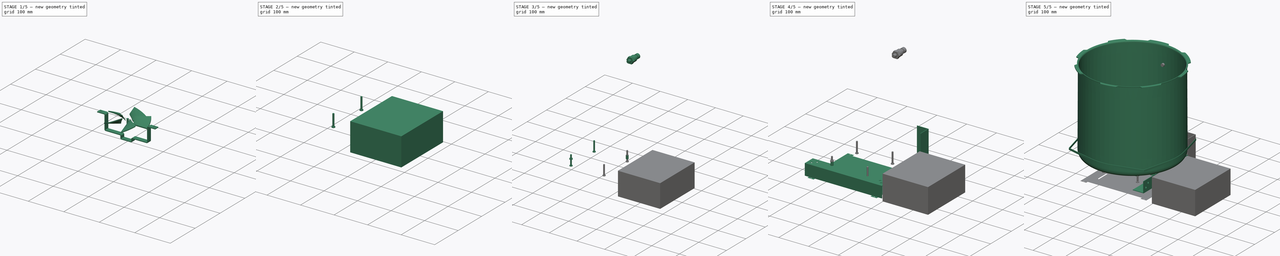
[diagram: build sequence overview — one tinted view per stage of 5, left to right]
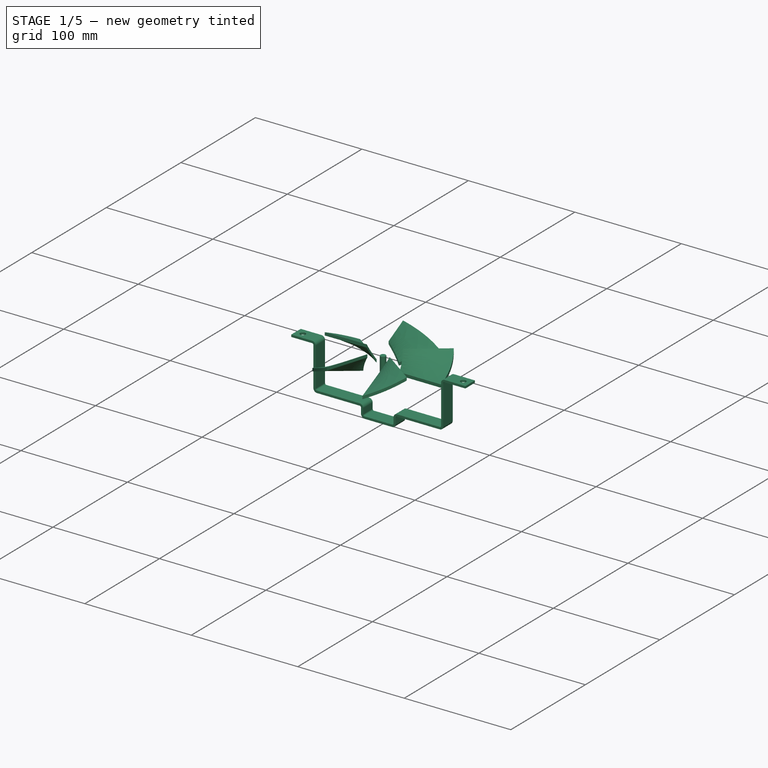
[diagram: stage 1 of 5 — iso view after this stage's code; geometry added in this stage tinted green]
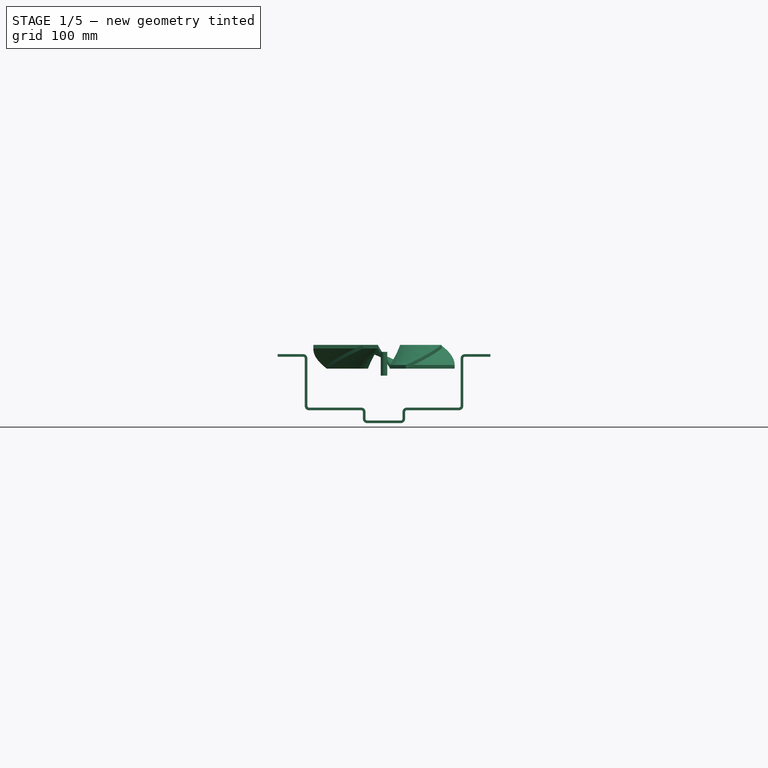
[diagram: stage 1 of 5 — front view after this stage's code; geometry added in this stage tinted green]
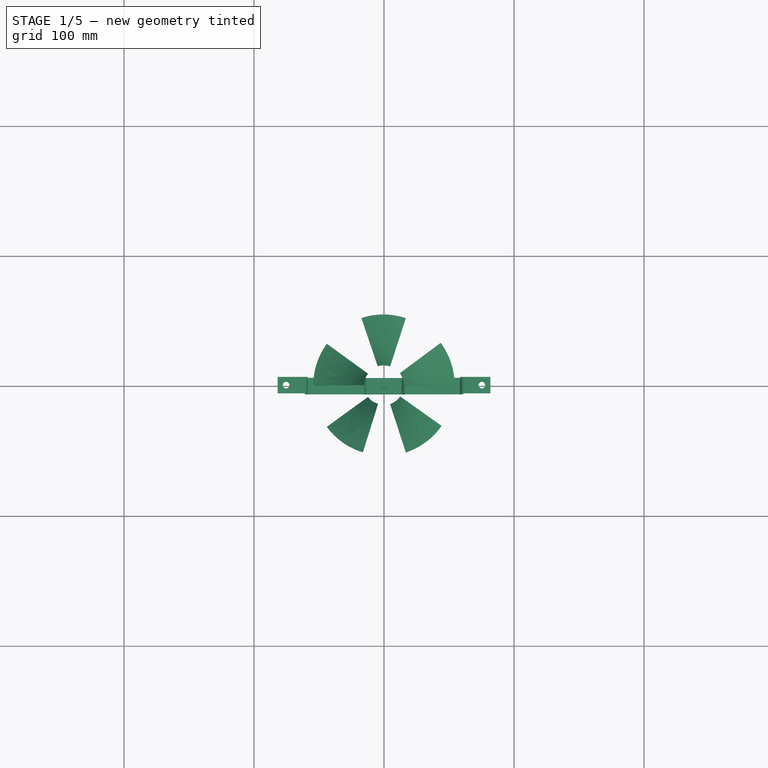
[diagram: stage 1 of 5 — top view after this stage's code; geometry added in this stage tinted green]
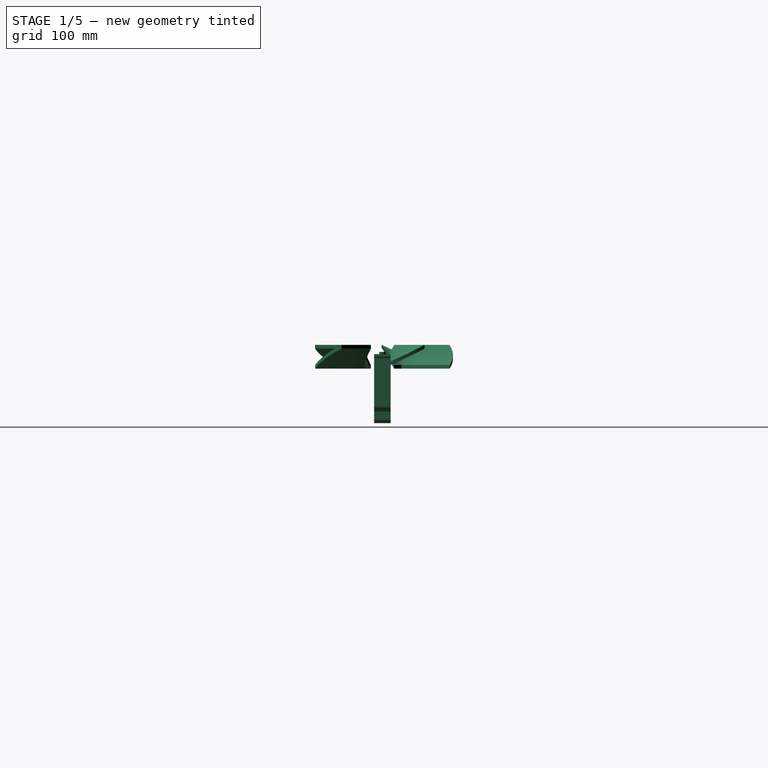
[diagram: stage 1 of 5 — right view after this stage's code; geometry added in this stage tinted green]
FCSTD DOCUMENT  (FreeCAD 0.15R4671 (Git))
Label: autoclave
License: All rights reserved
LicenseURL: http://en.wikipedia.org/wiki/All_rights_reserved
objects: Sketcher::SketchObject×25, Part::FeaturePython×14, PartDesign::Pad×13, App::FeaturePython×12, Part::Mirroring×11, PartDesign::Pocket×9, Part::Cylinder×5, App::DocumentObjectGroup×4, Part::Fillet×3, Part::MultiFuse×2, Part::Revolution×1, Part::Feature×1, Part::Cut×1, PartDesign::Revolution×1, Part::Box×1, Part::Helix×1, Part::Sweep×1
note: 112 computed .brp shape members not serialized (recipe doc carries the construction recipe); baked Part::Feature solids carry a one-line shape summary decoded from their .brp

FEATURE [Part::Sweep] Sweep  label="fan-blade1-pattern"
  Frenet = true
  Sections = -> [Sketch022]
  Solid = true
  Spine = -> Helix [Edge1]
  Transition = 1
FEATURE [Part::FeaturePython] Clone007  label="fan-blade1"  # Draft clone (typed FeaturePython)
  Objects = -> [Sweep]
  Scale = (1,1,1)
FEATURE [Part::FeaturePython] Clone008  label="fan-blade2"  # Draft clone (typed FeaturePython)
  Objects = -> [Sweep]
  Placement = pos=(0,0,0) rot=(0,0,1;1.25664rad)
  Scale = (1,1,1)
FEATURE [Part::FeaturePython] Clone009  label="fan-blade3"  # Draft clone (typed FeaturePython)
  Objects = -> [Sweep]
  Placement = pos=(0,0,0) rot=(0,0,1;2.51327rad)
  Scale = (1,1,1)
FEATURE [Part::FeaturePython] Clone010  label="fan-blade4"  # Draft clone (typed FeaturePython)
  Objects = -> [Sweep]
  Placement = pos=(0,0,0) rot=(0,0,1;3.76991rad)
  Scale = (1,1,1)
FEATURE [Part::FeaturePython] Clone011  label="fan-blade5"  # Draft clone (typed FeaturePython)
  Objects = -> [Sweep]
  Placement = pos=(0,0,0) rot=(0,0,-1;1.25664rad)
  Scale = (1,1,1)
FEATURE [Part::Cylinder] Cylinder004  label="fan-spindle"
  Angle = 360
  Height = 18.288
  Placement = pos=(0,0,-5.3594) rot=(0,0,1;0rad)
  Radius = 2.54
FEATURE [Sketcher::SketchObject] Sketch023  label="fan-bracket-profile-sketch"
  Placement = pos=(0,0,0) rot=(1,0,0;1.5708rad)
  sketch-geometry (23):
    g0: LineSegment StartX=-14.224 StartY=-39.878 StartZ=0 EndX=14.224 EndY=-39.878 EndZ=0
    g1: LineSegment StartX=14.224 StartY=-39.878 StartZ=0 EndX=14.224 EndY=-29.972 EndZ=0
    g2: LineSegment StartX=14.224 StartY=-29.972 StartZ=0 EndX=58.928 EndY=-29.972 EndZ=0
    g3: LineSegment StartX=58.928 StartY=-29.972 StartZ=0 EndX=58.928 EndY=11.176 EndZ=0
    g4: LineSegment StartX=58.928 StartY=11.176 StartZ=0 EndX=81.788 EndY=11.176 EndZ=0
    g5: LineSegment StartX=81.788 StartY=11.176 StartZ=0 EndX=81.788 EndY=9.144 EndZ=0
    g6: LineSegment StartX=81.788 StartY=9.144 StartZ=0 EndX=60.96 EndY=9.144 EndZ=0
    g7: LineSegment StartX=60.96 StartY=9.144 StartZ=0 EndX=60.96 EndY=-32.004 EndZ=0
    g8: LineSegment StartX=60.96 StartY=-32.004 StartZ=0 EndX=16.256 EndY=-32.004 EndZ=0
    g9: LineSegment StartX=16.256 StartY=-32.004 StartZ=0 EndX=16.256 EndY=-41.91 EndZ=0
    g10: LineSegment StartX=16.256 StartY=-41.91 StartZ=0 EndX=-16.256 EndY=-41.91 EndZ=0
    g11: LineSegment StartX=-16.256 StartY=-41.91 StartZ=0 EndX=-16.256 EndY=-32.004 EndZ=0
    g12: LineSegment StartX=-16.256 StartY=-32.004 StartZ=0 EndX=-60.96 EndY=-32.004 EndZ=0
    g13: LineSegment StartX=-60.96 StartY=-32.004 StartZ=0 EndX=-60.96 EndY=9.144 EndZ=0
    g14: LineSegment StartX=-60.96 StartY=9.144 StartZ=0 EndX=-81.788 EndY=9.144 EndZ=0
    g15: LineSegment StartX=-81.788 StartY=9.144 StartZ=0 EndX=-81.788 EndY=11.176 EndZ=0
    g16: LineSegment StartX=-81.788 StartY=11.176 StartZ=0 EndX=-58.928 EndY=11.176 EndZ=0
    g17: LineSegment StartX=-58.928 StartY=11.176 StartZ=0 EndX=-58.928 EndY=-29.972 EndZ=0
    g18: LineSegment StartX=-58.928 StartY=-29.972 StartZ=0 EndX=-14.224 EndY=-29.972 EndZ=0
    g19: LineSegment StartX=-14.224 StartY=-29.972 StartZ=0 EndX=-14.224 EndY=-39.878 EndZ=0
    g20: LineSegment [constr] StartX=-58.928 StartY=-29.972 StartZ=0 EndX=-60.96 EndY=-29.972 EndZ=0
    g21: LineSegment [constr] StartX=-58.928 StartY=-29.972 StartZ=0 EndX=-58.928 EndY=-32.004 EndZ=0
    g22: GeomPoint [constr] X=0 Y=-39.878 Z=0
  constraints (69):
    c: Horizontal(g0)
    c: Coincident(g0,g1)
    c: Vertical(g1)
    c: Coincident(g1,g2)
    c: Horizontal(g2)
    c: Coincident(g2,g3)
    c: Vertical(g3)
    c: Coincident(g3,g4)
    c: Horizontal(g4)
    c: Coincident(g4,g5)
    c: Vertical(g5)
    c: Coincident(g5,g6)
    c: Horizontal(g6)
    c: Coincident(g6,g7)
    c: Vertical(g7)
    c: Coincident(g7,g8)
    c: Horizontal(g8)
    c: Coincident(g8,g9)
    c: Vertical(g9)
    c: Coincident(g9,g10)
    c: Horizontal(g10)
    c: Coincident(g10,g11)
    c: Vertical(g11)
    c: Coincident(g11,g12)
    c: Horizontal(g12)
    c: Coincident(g12,g13)
    c: Vertical(g13)
    c: Coincident(g13,g14)
    c: Horizontal(g14)
    c: Coincident(g14,g15)
    c: Vertical(g15)
    c: Coincident(g15,g16)
    c: Horizontal(g16)
    c: Coincident(g16,g17)
    c: Vertical(g17)
    c: Coincident(g17,g18)
    c: Horizontal(g18)
    c: Coincident(g18,g19)
    c: Coincident(g19,g0)
    c: Vertical(g19)
    c: Equal(g7,g3)
    c: Equal(g3,g17)
    c: Equal(g17,g13)
    c: Equal(g18,g12)
    c: Equal(g12,g8)
    c: Equal(g8,g2)
    c: Equal(g9,g1)
    c: Equal(g1,g19)
    c: Equal(g19,g11)
    c: Equal(g5,g15)
    c: Equal(g14,g6)
    c: Equal(g16,g4)
    c: DistanceX(g16) = 22.86
    c: DistanceY(g16,g12) = -43.18
    c: DistanceX(g12,g7) = 121.92
    c: DistanceY(g15) = 2.032
    c: Coincident(g20,g17)
    c: PointOnObject(g20,g13)
    c: Horizontal(g20)
    c: Coincident(g21,g17)
    c: PointOnObject(g21,g12)
    c: Vertical(g21)
    c: Equal(g21,g20)
    c: Equal(g20,g15)
    c: DistanceY(g-1,g10) = -41.91
    c: PointOnObject(g22,g-2)
    c: Symmetric(g0,g0,g22)
    c: DistanceY(g9) = -9.906
    c: DistanceX(g0) = 28.448
FEATURE [PartDesign::Pad] Pad010  label="fan-bracket-profile"
  Length = 6.35
  Length2 = 6.35
  Placement = pos=(0,0,0) rot=(1,0,0;1.5708rad)
  Sketch = -> Sketch023
  Type = 4
FEATURE [Sketcher::SketchObject] Sketch024  label="fan-bracket-hole-1-sketch"
  ExternalGeometry = -> [Pad010]
  Placement = pos=(0,0,9.144) rot=(1,0,0;3.14159rad)
  Support = -> Pad010 [Face15]
  sketch-geometry (1):
    g0: Circle CenterX=-75.311 CenterY=0 CenterZ=0 NormalX=0 NormalY=0 NormalZ=1 Radius=2.54
  constraints (3):
    c: PointOnObject(g0,g-1)
    c: Radius(g0) = 2.54
    c: DistanceX(g0,g-3) = -6.477
FEATURE [PartDesign::Pocket] Pocket009  label="fan-bracket-hole-1"
  Length = 4.99999
  Placement = pos=(0,0,0) rot=(1,0,0;1.5708rad)
  Sketch = -> Sketch024
  Type = 0
FEATURE [Sketcher::SketchObject] Sketch025  label="fan-bracket-hole-1-sketch001"
  ExternalGeometry = -> [Pad010,Pocket009]
  Placement = pos=(0,0,9.144) rot=(1,0,0;3.14159rad)
  Support = -> Pocket009 [Face11]
  sketch-geometry (1):
    g0: Circle CenterX=75.311 CenterY=0 CenterZ=0 NormalX=0 NormalY=0 NormalZ=1 Radius=2.54
  constraints (3):
    c: PointOnObject(g0,g-1)
    c: Radius(g0) = 2.54
    c: DistanceX(g-4,g0) = -6.477
FEATURE [PartDesign::Pocket] Pocket010  label="fan-bracket-angles"
  Length = 4.99999
  Placement = pos=(0,0,0) rot=(1,0,0;1.5708rad)
  Sketch = -> Sketch025
  Type = 0
FEATURE [Part::Fillet] Fillet001  label="fan-bracket-fillet-1"
  Base = -> Pocket010
  Edges = 8 edges r=1.27: [Edge1,Edge2,Edge45,Edge46,Edge51,Edge54,Edge57,Edge59]
FEATURE [Part::Fillet] Fillet002  label="fan-bracket"
  Base = -> Fillet001
  Edges = 8 edges r=3.3: [Edge61,Edge62,Edge67,Edge68,Edge81,Edge82,Edge87,Edge88]
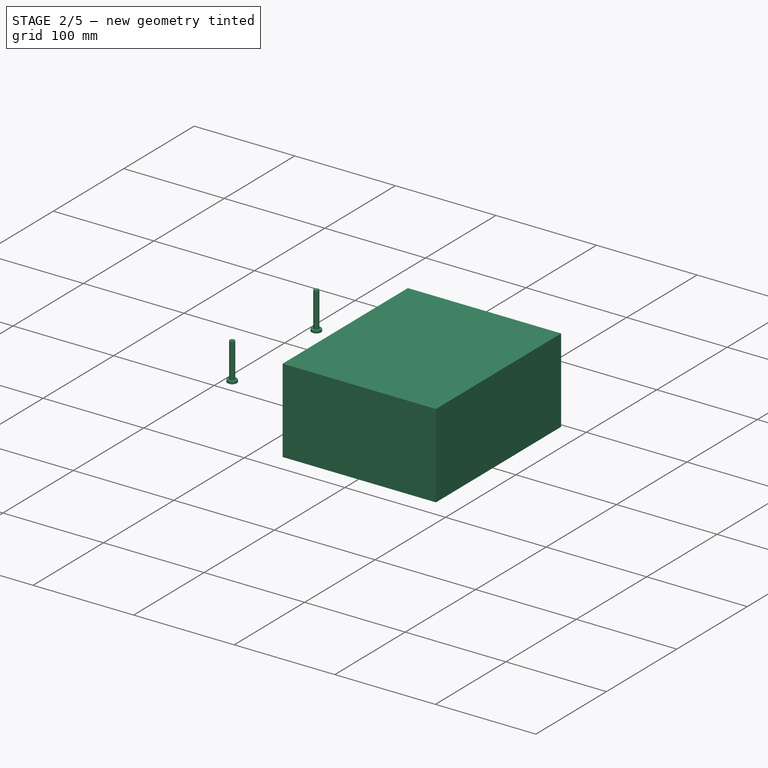
[diagram: stage 2 of 5 — iso view after this stage's code; geometry added in this stage tinted green]
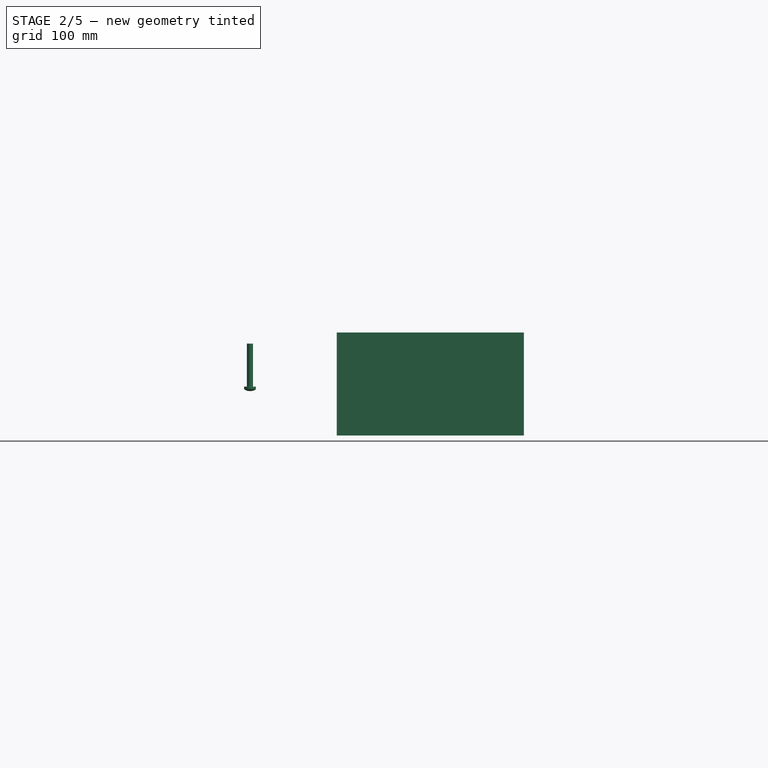
[diagram: stage 2 of 5 — front view after this stage's code; geometry added in this stage tinted green]
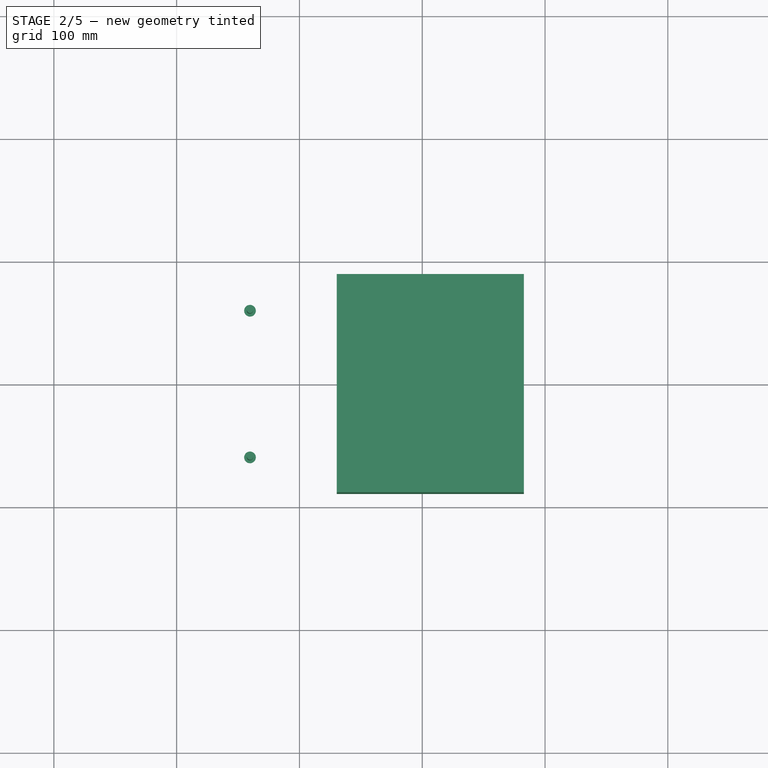
[diagram: stage 2 of 5 — top view after this stage's code; geometry added in this stage tinted green]
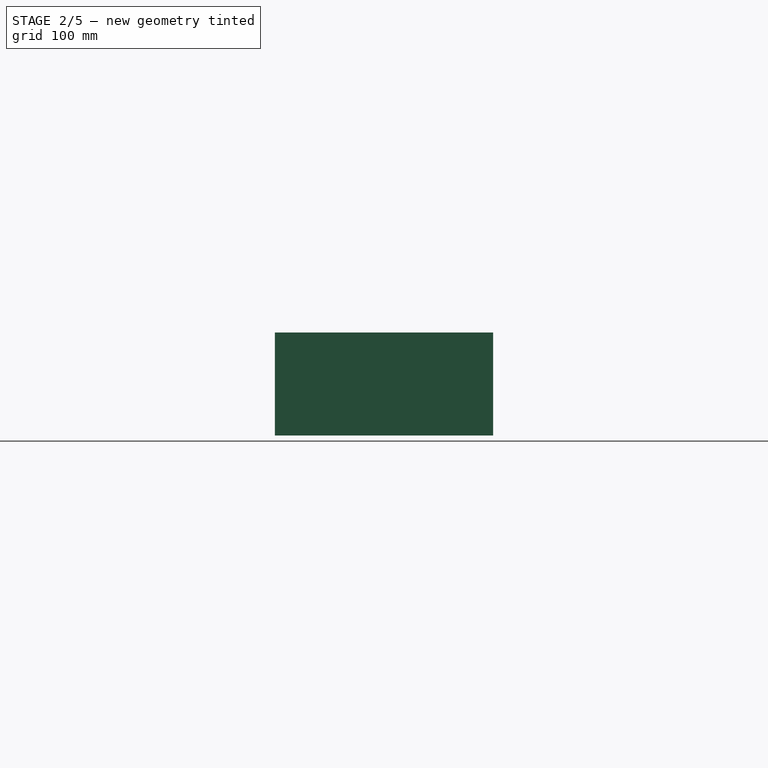
[diagram: stage 2 of 5 — right view after this stage's code; geometry added in this stage tinted green]
FEATURE [Part::FeaturePython] Screw002  label="burner-10X1.25-screw3"  # Fasteners workbench fastener (typed FeaturePython)
  Placement = pos=(59.7187,-59.7187,-45.4394) rot=(1,0,0;3.14159rad)
  diameter = 7
  invert = false
  length = 9
  matchOuter = false
  offset = 0
  thread = false
  type = 16
FEATURE [Part::FeaturePython] Screw003  label="burner-10X1.25-screw4"  # Fasteners workbench fastener (typed FeaturePython)
  Placement = pos=(59.7187,59.7187,-45.4394) rot=(1,0,0;3.14159rad)
  diameter = 7
  invert = false
  length = 9
  matchOuter = false
  offset = 0
  thread = false
  type = 16
FEATURE [App::DocumentObjectGroup] Group007  label="dimensions"
  Group = -> [Dimension001,Dimension002,Dimension003,Dimension004,Dimension005,Dimension006,Dimension007,Dimension008,Dimension009,Dimension010,Dimension011,Dimension]
FEATURE [App::DocumentObjectGroup] Group008  label="burner-screws"
  Group = -> [Screw,Screw001,Screw002,Screw003]
FEATURE [Part::Box] Box  label="fan-frame-cube"
  Height = 9.525
  Length = 60.706
  Placement = pos=(-30.353,-46.482,-24.892) rot=(0,0,1;0rad)
  Width = 63.754
FEATURE [Part::Cylinder] Cylinder003  label="fan-blade-center"
  Angle = 360
  Height = 18.288
  Radius = 16.51
FEATURE [Part::Helix] Helix  label="fan-blade-helix"
  Angle = 0
  Height = 15.494
  LocalCoord = 0
  Pitch = 152.4
  Radius = 54.356
  Style = 1
FEATURE [Sketcher::SketchObject] Sketch022  label="fan-blade-profile-sketch"
  Placement = pos=(0,0,0) rot=(1,0,0;1.5708rad)
  sketch-geometry (4):
    g0: LineSegment StartX=54.356 StartY=0 StartZ=0 EndX=15.24 EndY=0 EndZ=0
    g1: LineSegment StartX=15.24 StartY=0 StartZ=0 EndX=15.24 EndY=2.794 EndZ=0
    g2: LineSegment StartX=15.24 StartY=2.794 StartZ=0 EndX=54.356 EndY=2.794 EndZ=0
    g3: LineSegment StartX=54.356 StartY=2.794 StartZ=0 EndX=54.356 EndY=0 EndZ=0
  constraints (12):
    c: Coincident(g1,g2)
    c: Coincident(g2,g3)
    c: Coincident(g3,g0)
    c: Horizontal(g0)
    c: Vertical(g1)
    c: Vertical(g3)
    c: DistanceX(g0) = -39.116
    c: Horizontal(g2)
    c: DistanceY(g3) = -2.794
    c: Coincident(g0,g1)
    c: PointOnObject(g0,g-1)
    c: DistanceX(g-1,g0) = 15.24
FEATURE [Part::Fillet] Fillet  label="fan-frame"
  Base = -> Box
  Edges = 4 edges r=9.14: [Edge1,Edge3,Edge5,Edge7]
FEATURE [Sketcher::SketchObject] Sketch021  label="fan-coil-spindle-sketch"
  ExternalGeometry = -> [Fillet]
  Placement = pos=(0,0,-15.367) rot=(0,0,1;0rad)
  Support = -> Fillet [Face2]
  sketch-geometry (7):
    g0: Circle CenterX=0 CenterY=0 CenterZ=0 NormalX=0 NormalY=0 NormalZ=1 Radius=13.716
    g1: LineSegment [constr] StartX=0 StartY=17.272 StartZ=0 EndX=0 EndY=0 EndZ=0
    g2: LineSegment StartX=-19.177 StartY=-19.05 StartZ=0 EndX=19.177 EndY=-19.05 EndZ=0
    g3: LineSegment StartX=19.177 StartY=-19.05 StartZ=0 EndX=19.177 EndY=-58.166 EndZ=0
    g4: LineSegment StartX=19.177 StartY=-58.166 StartZ=0 EndX=-19.177 EndY=-58.166 EndZ=0
    g5: LineSegment StartX=-19.177 StartY=-58.166 StartZ=0 EndX=-19.177 EndY=-19.05 EndZ=0
    g6: LineSegment [constr] StartX=0 StartY=-46.482 StartZ=0 EndX=0 EndY=-58.166 EndZ=0
  constraints (20):
    c: Radius(g0) = 13.716
    c: Coincident(g1,g0)
    c: Vertical(g1)
    c: DistanceY(g1) = -17.272
    c: Coincident(g2,g3)
    c: Coincident(g3,g4)
    c: Coincident(g4,g5)
    c: Coincident(g5,g2)
    c: Horizontal(g2)
    c: Horizontal(g4)
    c: Vertical(g3)
    c: Vertical(g5)
    c: DistanceX(g4) = -38.354
    c: DistanceY(g3) = -39.116
    c: PointOnObject(g6,g4)
    c: Vertical(g6)
    c: Symmetric(g4,g4,g6)
    c: DistanceY(g6) = -11.684
    c: Symmetric(g-4,g-4,g6)
    c: Symmetric(g-3,g-3,g1)
FEATURE [PartDesign::Pad] Pad009  label="fan-body"
  Length = 10
  Length2 = 20.32
  Sketch = -> Sketch021
  Type = 4
FEATURE [Part::MultiFuse] Fusion  label="fan-blades"
  Shapes = -> [Cylinder004,Cylinder003,Clone008,Clone010,Clone007,Clone009,Clone011]
FEATURE [Part::MultiFuse] Fusion001  label="fan"
  Placement = pos=(184.925,0,-53.0369) rot=(-0.330525,-0.330525,0.884029;1.69375rad)
  Shapes = -> [Fillet002,Pad009,Fusion]
FEATURE [Part::FeaturePython] Facebinder  label="fan-bracket-mounting-face"  # WARN: FeaturePython — macro-defined, semantics opaque (R4)
  Faces = -> [Fusion001]
FEATURE [Sketcher::SketchObject] Sketch032  label="fan-shroud-sketch"
  ExternalGeometry = -> [Facebinder]
  Placement = pos=(98.5223,0,-113.337) rot=(0,-1,0;0.715585rad)
  Support = -> Facebinder [Face2]
  sketch-geometry (8):
    g0: Circle CenterX=104.769 CenterY=-75.311 CenterZ=0 NormalX=0 NormalY=0 NormalZ=1 Radius=2.54
    g1: LineSegment [constr] StartX=104.769 StartY=75.311 StartZ=0 EndX=104.769 EndY=-75.311 EndZ=0
    g2: Circle CenterX=104.769 CenterY=0 CenterZ=0 NormalX=0 NormalY=0 NormalZ=1 Radius=57.15
    g3: LineSegment StartX=42.8174 StartY=88.9 StartZ=0 EndX=169.817 EndY=88.9 EndZ=0
    g4: LineSegment StartX=169.817 StartY=88.9 StartZ=0 EndX=169.817 EndY=-88.9 EndZ=0
    g5: LineSegment StartX=169.817 StartY=-88.9 StartZ=0 EndX=42.8174 EndY=-88.9 EndZ=0
    g6: LineSegment StartX=42.8174 StartY=-88.9 StartZ=0 EndX=42.8174 EndY=88.9 EndZ=0
    g7: GeomPoint [constr] X=42.8174 Y=0 Z=0
  constraints (20):
    c: Coincident(g0,g-3)
    c: Equal(g0,g-3)
    c: Coincident(g1,g-4)
    c: Coincident(g1,g0)
    c: PointOnObject(g2,g1)
    c: PointOnObject(g2,g-1)
    c: Radius(g2) = 57.15
    c: Coincident(g3,g4)
    c: Coincident(g4,g5)
    c: Coincident(g5,g6)
    c: Coincident(g6,g3)
    c: Horizontal(g3)
    c: Horizontal(g5)
    c: Vertical(g4)
    c: Vertical(g6)
    c: PointOnObject(g7,g-1)
    c: Symmetric(g6,g6,g7)
    c: DistanceY(g4) = -177.8
    c: DistanceX(g7,g2) = 61.9516
    c: DistanceX(g3) = 127
FEATURE [PartDesign::Pad] Pad016  label="fan-shroud-internal"
  Length = 0.762
  Length2 = 100
  Sketch = -> Sketch032
  Type = 0
FEATURE [Sketcher::SketchObject] Sketch029  label="fan-shroud-side1-sketch"
  ExternalGeometry = -> [Pad016]
  Placement = pos=(0,-88.9,0) rot=(1,0,0;1.5708rad)
  Support = -> Pad016 [Face3]
  sketch-geometry (6):
    g0: LineSegment StartX=130.337 StartY=-1.35165 StartZ=0 EndX=130.337 EndY=-85.2462 EndZ=0
    g1: LineSegment StartX=130.337 StartY=-1.35165 StartZ=0 EndX=282.737 EndY=-1.35165 EndZ=0
    g2: LineSegment StartX=282.737 StartY=-1.35165 StartZ=0 EndX=282.737 EndY=-85.2462 EndZ=0
    g3: LineSegment [constr] StartX=131.099 StartY=-1.35165 StartZ=0 EndX=131.099 EndY=-2.11365 EndZ=0
    g4: LineSegment [constr] StartX=131.099 StartY=-2.11365 StartZ=0 EndX=130.337 EndY=-2.11365 EndZ=0
    g5: LineSegment StartX=130.337 StartY=-85.2462 StartZ=0 EndX=282.737 EndY=-85.2462 EndZ=0
  constraints (20):
    c: Vertical(g0)
    c: Coincident(g1,g0)
    c: Horizontal(g1)
    c: Coincident(g2,g1)
    c: Vertical(g2)
    c: PointOnObject(g3,g1)
    c: Coincident(g3,g4)
    c: PointOnObject(g4,g0)
    c: Horizontal(g4)
    c: Vertical(g3)
    c: Equal(g3,g4)
    c: DistanceX(g4) = -0.762
    c: Horizontal(g5)
    c: Equal(g2,g0)
    c: DistanceX(g1) = 152.4
    c: PointOnObject(g-4,g1)
    c: Coincident(g5,g0)
    c: PointOnObject(g-4,g0)
    c: PointOnObject(g-3,g5)
    c: Coincident(g2,g5)
FEATURE [PartDesign::Pad] Pad013  label="fan-shorud-side1-pattern"
  Length = 0.762
  Length2 = 100
  Reversed = true
  Sketch = -> Sketch029
  Type = 0
FEATURE [Sketcher::SketchObject] Sketch033  label="fan-shroud-box-sketch"
  ExternalGeometry = -> [Pad013]
  Placement = pos=(0,-88.9,0) rot=(1,0,0;1.5708rad)
  Support = -> Pad013 [Face19]
  sketch-geometry (11):
    g0: LineSegment StartX=130.337 StartY=-1.35165 StartZ=0 EndX=282.737 EndY=-1.35165 EndZ=0
    g1: LineSegment StartX=282.737 StartY=-1.35165 StartZ=0 EndX=282.737 EndY=-85.2462 EndZ=0
    g2: LineSegment [constr] StartX=130.337 StartY=-85.2462 StartZ=0 EndX=130.337 EndY=-1.35165 EndZ=0
    g3: LineSegment StartX=130.337 StartY=-2.11365 StartZ=0 EndX=281.975 EndY=-2.11365 EndZ=0
    g4: LineSegment StartX=281.975 StartY=-2.11365 StartZ=0 EndX=281.975 EndY=-85.2462 EndZ=0
    g5: LineSegment StartX=281.975 StartY=-85.2462 StartZ=0 EndX=282.737 EndY=-85.2462 EndZ=0
    g6: GeomPoint [constr] X=130.337 Y=-85.2462 Z=0
    g7: LineSegment StartX=130.337 StartY=-2.11365 StartZ=0 EndX=130.337 EndY=-1.35165 EndZ=0
    g8: LineSegment [constr] StartX=282.737 StartY=-85.2462 StartZ=0 EndX=130.337 EndY=-85.2462 EndZ=0
    g9: LineSegment [constr] StartX=281.975 StartY=-1.35165 StartZ=0 EndX=281.975 EndY=-2.11365 EndZ=0
    g10: LineSegment [constr] StartX=281.975 StartY=-2.11365 StartZ=0 EndX=282.737 EndY=-2.11365 EndZ=0
  constraints (28):
    c: Coincident(g0,g1)
    c: Coincident(g2,g0)
    c: Horizontal(g0)
    c: Vertical(g1)
    c: Vertical(g2)
    c: Coincident(g0,g-4)
    c: Coincident(g1,g-3)
    c: Coincident(g3,g4)
    c: Horizontal(g3)
    c: Vertical(g4)
    c: Coincident(g5,g4)
    c: Coincident(g5,g1)
    c: Horizontal(g5)
    c: Coincident(g6,g2)
    c: Coincident(g7,g3)
    c: Vertical(g7)
    c: Coincident(g8,g1)
    c: Coincident(g8,g2)
    c: Horizontal(g8)
    c: Coincident(g0,g7)
    c: PointOnObject(g9,g0)
    c: Coincident(g9,g3)
    c: Coincident(g9,g10)
    c: PointOnObject(g10,g-3)
    c: Horizontal(g10)
    c: Vertical(g9)
    c: DistanceX(g10) = 0.762
    c: Equal(g9,g10)
FEATURE [PartDesign::Pad] Pad017  label="fan-shroud-box"
  Length = 177.8
  Length2 = 100
  Reversed = true
  Sketch = -> Sketch033
  Type = 0
FEATURE [App::DocumentObjectGroup] Group  label="deps"
  Group = -> [Pad,Clone,Pad001,Clone005,Pocket002,Revolve,Revolve_solid,Cylinder,Pocket006,Pad007,Pocket,Revolution,Helix,Fillet,Sweep,Pad010,Pocket009,Pad013,Facebinder,Pad016,Pad017]
FEATURE [Sketcher::SketchObject] Sketch034  label="fan-shroud-side2-sketch"
  ExternalGeometry = -> [Pad017]
  Placement = pos=(0,88.9,0) rot=(0,0.707107,0.707107;3.14159rad)
  Support = -> Pad017 [Face18]
  sketch-geometry (4):
    g0: LineSegment StartX=-130.337 StartY=-1.35165 StartZ=0 EndX=-282.737 EndY=-1.35165 EndZ=0
    g1: LineSegment StartX=-282.737 StartY=-1.35165 StartZ=0 EndX=-282.737 EndY=-85.2462 EndZ=0
    g2: LineSegment StartX=-282.737 StartY=-85.2462 StartZ=0 EndX=-130.337 EndY=-85.2462 EndZ=0
    g3: LineSegment StartX=-130.337 StartY=-85.2462 StartZ=0 EndX=-130.337 EndY=-1.35165 EndZ=0
  constraints (10):
    c: Coincident(g0,g1)
    c: Coincident(g1,g2)
    c: Coincident(g2,g3)
    c: Coincident(g3,g0)
    c: Horizontal(g0)
    c: Horizontal(g2)
    c: Vertical(g1)
    c: Vertical(g3)
    c: Coincident(g0,g-3)
    c: Coincident(g1,g-4)
FEATURE [PartDesign::Pad] Pad018  label="fan-shroud"
  Length = 0.762
  Length2 = 100
  Reversed = true
  Sketch = -> Sketch034
  Type = 0
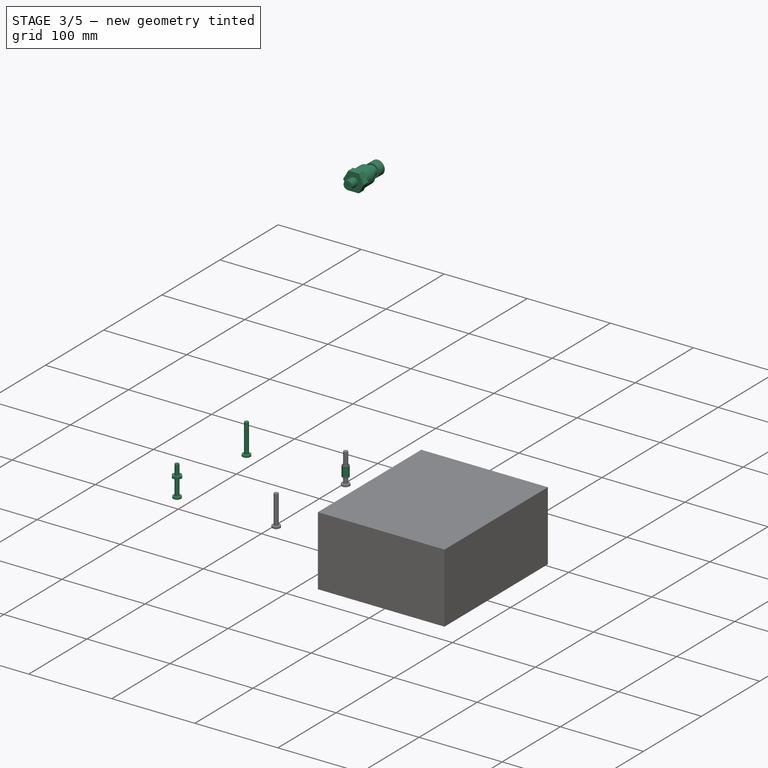
[diagram: stage 3 of 5 — iso view after this stage's code; geometry added in this stage tinted green]
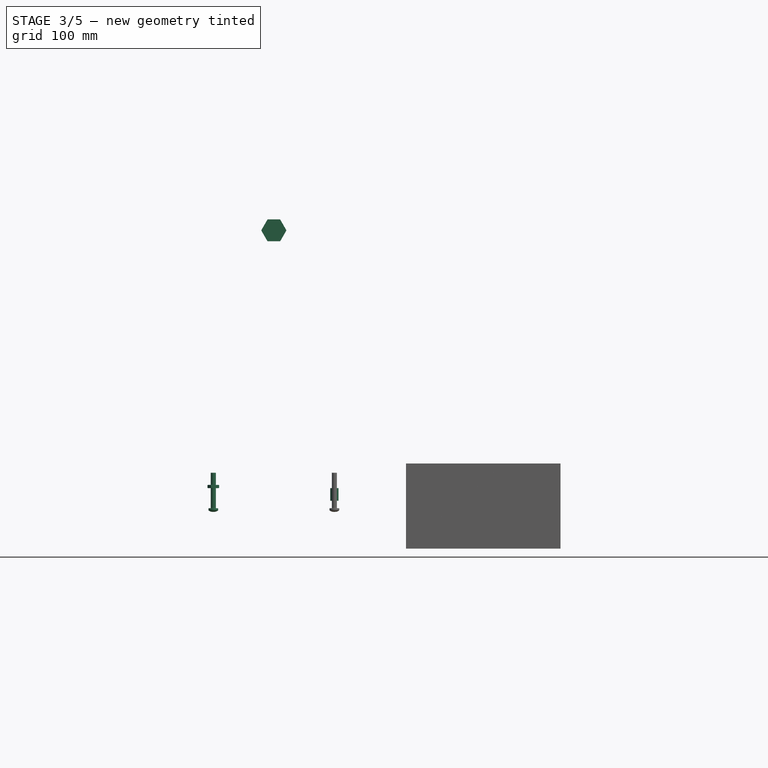
[diagram: stage 3 of 5 — front view after this stage's code; geometry added in this stage tinted green]
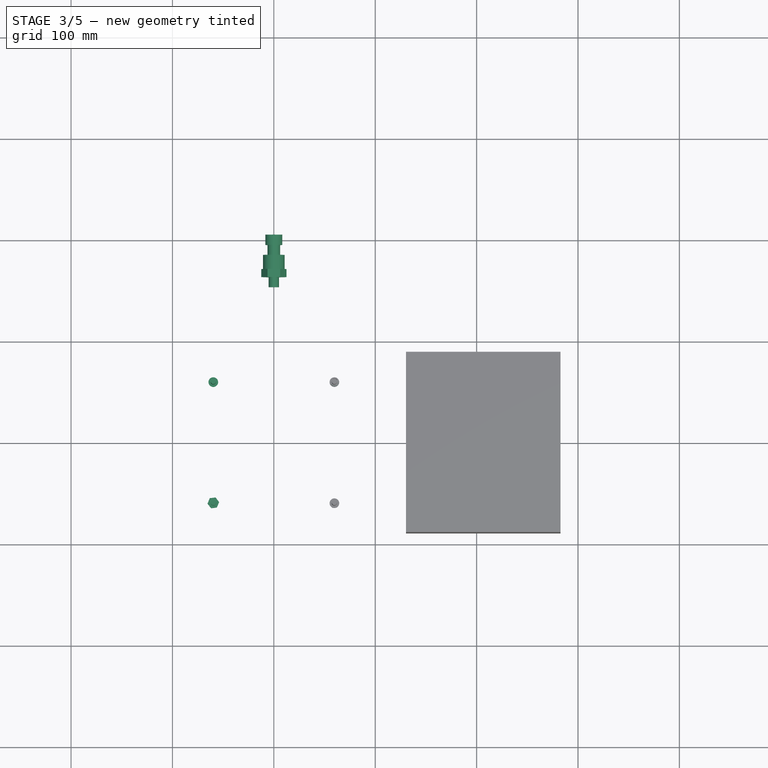
[diagram: stage 3 of 5 — top view after this stage's code; geometry added in this stage tinted green]
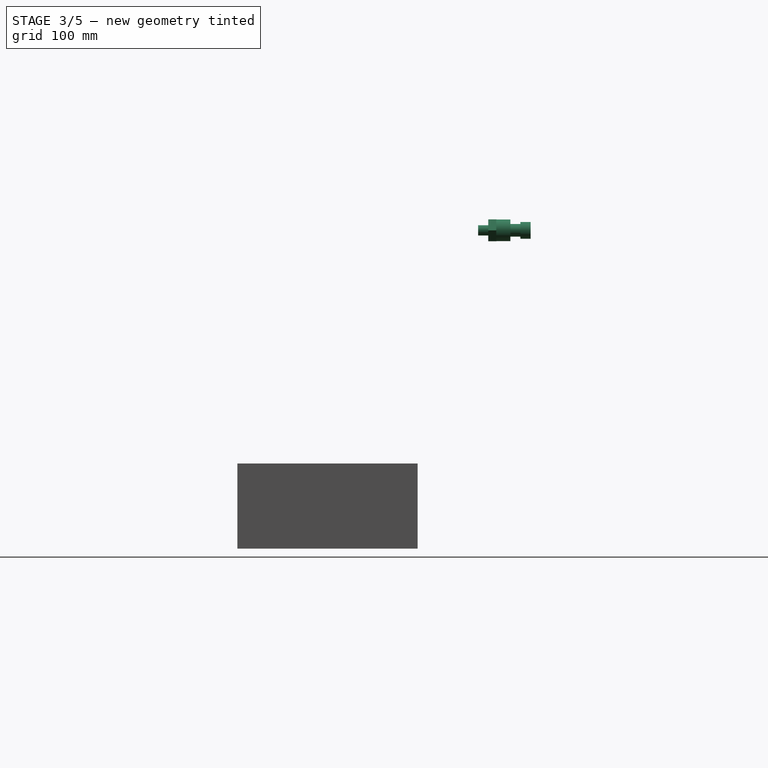
[diagram: stage 3 of 5 — right view after this stage's code; geometry added in this stage tinted green]
FEATURE [Part::FeaturePython] Screw  label="burner-10X1.25-screw1"  # Fasteners workbench fastener (typed FeaturePython)
  Placement = pos=(-59.7187,59.7187,-45.4394) rot=(1,0,0;3.14159rad)
  diameter = 7
  invert = false
  length = 9
  matchOuter = false
  offset = 0
  thread = false
  type = 16
FEATURE [Part::FeaturePython] Screw001  label="burner-10X1.25-screw2"  # Fasteners workbench fastener (typed FeaturePython)
  Placement = pos=(-59.7187,-59.7187,-45.4394) rot=(1,0,0;3.14159rad)
  diameter = 7
  invert = false
  length = 9
  matchOuter = false
  offset = 0
  thread = false
  type = 16
FEATURE [Part::Cylinder] Cylinder001  label="spring-outer"
  Angle = 360
  Height = 12.446
  Radius = 4.064
FEATURE [Part::Cylinder] Cylinder002  label="spring-inner"
  Angle = 360
  Height = 12.446
  Radius = 3.302
FEATURE [Part::Cut] Cut  label="spring1"
  Base = -> Cylinder001
  Placement = pos=(-59.69,59.7662,-25.654) rot=(0.5547,0.83205,0;3.14159rad)
  Tool = -> Cylinder002
FEATURE [Part::Mirroring] Part__Mirroring009  label="spring2"
  Base = (0,0,0)
  Normal = (1,0,0)
  Source = -> Cut
FEATURE [Part::FeaturePython] Nut  label="burner-unk-nut1"  # Fasteners workbench fastener (typed FeaturePython)
  Placement = pos=(-59.69,59.7662,-22.454) rot=(0.5547,0.83205,0;3.14159rad)
  diameter = 8
  invert = false
  matchOuter = false
  offset = 0
  thread = false
  type = 3
FEATURE [Part::Mirroring] Part__Mirroring012  label="burner-unk-nut2"
  Base = (0,0,0)
  Normal = (1,0,0)
  Source = -> Nut
FEATURE [Part::Mirroring] Part__Mirroring013  label="burner-unk-nut3"
  Base = (0,0,0)
  Normal = (0,1,0)
  Source = -> Part__Mirroring012
FEATURE [Part::Mirroring] Part__Mirroring014  label="burner-unk-nut4"
  Base = (0,0,0)
  Normal = (1,0,0)
  Source = -> Part__Mirroring013
FEATURE [App::FeaturePython] Dimension001  # Draft dimension (typed FeaturePython)
  Dimline = (-210,-52.51,-38.1)
  Direction = (0,0,0)
  Distance = 12.6764
  End = (-105.437,-52.4002,-38.1)
  Normal = (0,0,-1)
  Start = (-105.437,-65.0766,-38.1)
FEATURE [App::FeaturePython] Dimension002  # Draft dimension (typed FeaturePython)
  Dimline = (-241,-62.51,-38.1)
  Direction = (0,0,0)
  Distance = 23.7998
  End = (-116.537,-52.4002,-38.1)
  Normal = (0,0,-1)
  Start = (-116.537,-76.2,-38.1)
FEATURE [App::FeaturePython] Dimension003  # Draft dimension (typed FeaturePython)
  Dimline = (-165,-56.51,-38.1)
  Direction = (0,0,0)
  Distance = 7.366
  End = (-59.69,-52.4002,-38.1)
  Normal = (0,0,-1)
  Start = (-59.69,-59.7662,-38.1)
FEATURE [App::FeaturePython] Dimension004  # Draft dimension (typed FeaturePython)
  Dimline = (-120.26,-28.98,-38.1)
  Direction = (0,0,0)
  Distance = 12.7
  End = (-129.237,-76.2,-38.1)
  Normal = (0,0,-1)
  Start = (-116.537,-76.2,-38.1)
FEATURE [App::FeaturePython] Dimension005  # Draft dimension (typed FeaturePython)
  Dimline = (-106.41,-7.2,-38.1)
  Direction = (0,0,0)
  Distance = 23.7998
  End = (-129.237,-65.0766,-38.1)
  Normal = (0,0,-1)
  Start = (-105.437,-65.0766,-38.1)
FEATURE [App::FeaturePython] Dimension006  # Draft dimension (typed FeaturePython)
  Dimline = (-117,11.49,-38.1)
  Direction = (0,0,0)
  Distance = 69.547
  End = (-129.237,-59.7662,-38.1)
  Normal = (0,0,-1)
  Start = (-59.69,-59.7662,-38.1)
FEATURE [App::FeaturePython] Dimension007  # Draft dimension (typed FeaturePython)
  Dimline = (-78.83,155.54,-38.1)
  Direction = (0,0,0)
  Distance = 12.7
  End = (-129.237,76.2272,-38.1)
  Normal = (0,0,-1)
  Start = (-116.537,76.2272,-38.1)
FEATURE [App::FeaturePython] Dimension008  # Draft dimension (typed FeaturePython)
  Dimline = (-109,175.49,-38.1)
  Direction = (0,0,0)
  Distance = 23.7998
  End = (-129.237,65.0766,-38.1)
  Normal = (0,0,-1)
  Start = (-105.437,65.0766,-38.1)
FEATURE [App::FeaturePython] Dimension009  # Draft dimension (typed FeaturePython)
  Dimline = (-167,120.49,-38.1)
  Direction = (0,0,0)
  Distance = 53.0098
  End = (-116.537,129.237,-38.1)
  Normal = (0,0,-1)
  Start = (-116.537,76.2272,-38.1)
FEATURE [App::FeaturePython] Dimension010  # Draft dimension (typed FeaturePython)
  Dimline = (-192,117.49,-38.1)
  Direction = (0,0,0)
  Distance = 64.1604
  End = (-105.437,129.237,-38.1)
  Normal = (0,0,-1)
  Start = (-105.437,65.0766,-38.1)
FEATURE [App::FeaturePython] Dimension011  # Draft dimension (typed FeaturePython)
  Dimline = (-303,113.49,-38.1)
  Direction = (0,0,0)
  Distance = 258.474
  End = (-129.237,129.237,-38.1)
  Normal = (0,0,-1)
  Start = (-129.237,-129.237,-38.1)
FEATURE [App::FeaturePython] Dimension  # Draft dimension (typed FeaturePython)
  Dimline = (-119,-169.51,-38.1)
  Direction = (0,0,0)
  Distance = 258.474
  End = (-129.237,-90.5002,-38.1)
  Normal = (0,0,-1)
  Start = (129.237,-90.5002,-38.1)
FEATURE [Sketcher::SketchObject] Sketch019  label="pressure-sensor-profile"
  Placement = pos=(0,148.59,228.6) rot=(0,0,1;0rad)
  sketch-geometry (14):
    g0: LineSegment StartX=0 StartY=0 StartZ=0 EndX=5.08 EndY=0 EndZ=0
    g1: LineSegment StartX=5.08 StartY=0 StartZ=0 EndX=5.08 EndY=9.906 EndZ=0
    g2: LineSegment StartX=5.08 StartY=9.906 StartZ=0 EndX=12.446 EndY=9.906 EndZ=0
    g3: LineSegment StartX=12.446 StartY=9.906 StartZ=0 EndX=12.446 EndY=17.8562 EndZ=0
    g4: LineSegment StartX=12.446 StartY=17.8562 StartZ=0 EndX=10.668 EndY=17.8562 EndZ=0
    g5: LineSegment StartX=10.668 StartY=17.8562 StartZ=0 EndX=10.668 EndY=31.8262 EndZ=0
    g6: LineSegment StartX=10.668 StartY=31.8262 StartZ=0 EndX=6.223 EndY=31.8262 EndZ=0
    g7: LineSegment StartX=6.223 StartY=31.8262 StartZ=0 EndX=6.223 EndY=41.6052 EndZ=0
    g8: LineSegment StartX=6.223 StartY=41.6052 StartZ=0 EndX=8.3058 EndY=41.6052 EndZ=0
    g9: LineSegment StartX=8.3058 StartY=41.6052 StartZ=0 EndX=8.3058 EndY=51.7652 EndZ=0
    g10: LineSegment StartX=8.3058 StartY=51.7652 StartZ=0 EndX=6.9596 EndY=51.7652 EndZ=0
    g11: LineSegment StartX=6.9596 StartY=51.7652 StartZ=0 EndX=6.9596 EndY=44.1452 EndZ=0
    g12: LineSegment StartX=6.9596 StartY=44.1452 StartZ=0 EndX=0 EndY=44.1452 EndZ=0
    g13: LineSegment StartX=0 StartY=44.1452 StartZ=0 EndX=0 EndY=0 EndZ=0
  constraints (41):
    c: Coincident(g-1,g0)
    c: PointOnObject(g0,g-1)
    c: Coincident(g0,g1)
    c: Vertical(g1)
    c: Coincident(g1,g2)
    c: Horizontal(g2)
    c: Coincident(g2,g3)
    c: Vertical(g3)
    c: Coincident(g3,g4)
    c: Horizontal(g4)
    c: Coincident(g4,g5)
    c: Vertical(g5)
    c: Coincident(g5,g6)
    c: Horizontal(g6)
    c: Coincident(g6,g7)
    c: Vertical(g7)
    c: Coincident(g7,g8)
    c: Horizontal(g8)
    c: Coincident(g8,g9)
    c: Vertical(g9)
    c: Coincident(g9,g10)
    c: Horizontal(g10)
    c: Coincident(g10,g11)
    c: Vertical(g11)
    c: Coincident(g11,g12)
    c: Horizontal(g12)
    c: Coincident(g12,g13)
    c: Coincident(g13,g0)
    c: Vertical(g13)
    c: DistanceX(g0) = 5.08
    c: DistanceY(g1) = 9.906
    c: DistanceX(g2) = 7.366
    c: DistanceY(g3) = 7.9502
    c: DistanceY(g5) = 13.97
    c: DistanceX(g6) = -4.445
    c: DistanceY(g7) = 9.779
    c: DistanceX(g8) = 2.0828
    c: DistanceY(g9) = 10.16
    c: DistanceX(g10) = -1.3462
    c: DistanceY(g11) = -7.62
    c: DistanceX(g4) = -1.778
FEATURE [PartDesign::Revolution] Revolution  label="pressure-sensor-blank"
  Angle = 360
  Axis = (0,1,0)
  Base = (0,148.59,228.6)
  Placement = pos=(0,148.59,228.6) rot=(0,0,1;0rad)
  ReferenceAxis = -> Sketch019 [V_Axis]
  Sketch = -> Sketch019
FEATURE [Sketcher::SketchObject] Sketch020  label="pressure-sensor-hex"
  ExternalGeometry = -> [Revolution]
  Placement = pos=(0,158.496,228.6) rot=(1,0,0;1.5708rad)
  Support = -> Revolution [Face3]
  sketch-geometry (8):
    g0: LineSegment StartX=6.223 StartY=-10.7786 StartZ=0 EndX=12.446 EndY=0 EndZ=0
    g1: LineSegment StartX=12.446 StartY=0 StartZ=0 EndX=6.223 EndY=10.7786 EndZ=0
    g2: LineSegment StartX=6.223 StartY=10.7786 StartZ=0 EndX=-6.223 EndY=10.7786 EndZ=0
    g3: LineSegment StartX=-6.223 StartY=10.7786 StartZ=0 EndX=-12.446 EndY=0 EndZ=0
    g4: LineSegment StartX=-12.446 StartY=0 StartZ=0 EndX=-6.223 EndY=-10.7786 EndZ=0
    g5: LineSegment StartX=-6.223 StartY=-10.7786 StartZ=0 EndX=6.223 EndY=-10.7786 EndZ=0
    g6: Circle [constr] CenterX=0 CenterY=0 CenterZ=0 NormalX=0 NormalY=0 NormalZ=1 Radius=12.446
    g7: Circle CenterX=0 CenterY=0 CenterZ=0 NormalX=0 NormalY=0 NormalZ=1 Radius=25.4
  constraints (18):
    c: Coincident(g0,g1)
    c: Coincident(g1,g2)
    c: Coincident(g2,g3)
    c: Coincident(g3,g4)
    c: Coincident(g4,g5)
    c: Coincident(g5,g0)
    c: Equal(g0, g1-g5) x5
    c: PointOnObject(g0,g6)
    c: PointOnObject(g1,g6)
    c: PointOnObject(g2,g6)
    c: PointOnObject(g3,g6)
    c: PointOnObject(g4,g6)
    c: PointOnObject(g5,g6)
    c: Coincident(g6,g-1)
    c: PointOnObject(g1,g-3)
    c: Horizontal(g2)
    c: Coincident(g7,g-1)
    c: Radius(g7) = 25.4
FEATURE [PartDesign::Pocket] Pocket008  label="pressure-sensor"
  Length = 8.128
  Placement = pos=(0,148.59,228.6) rot=(0,0,1;0rad)
  Sketch = -> Sketch020
  Type = 0
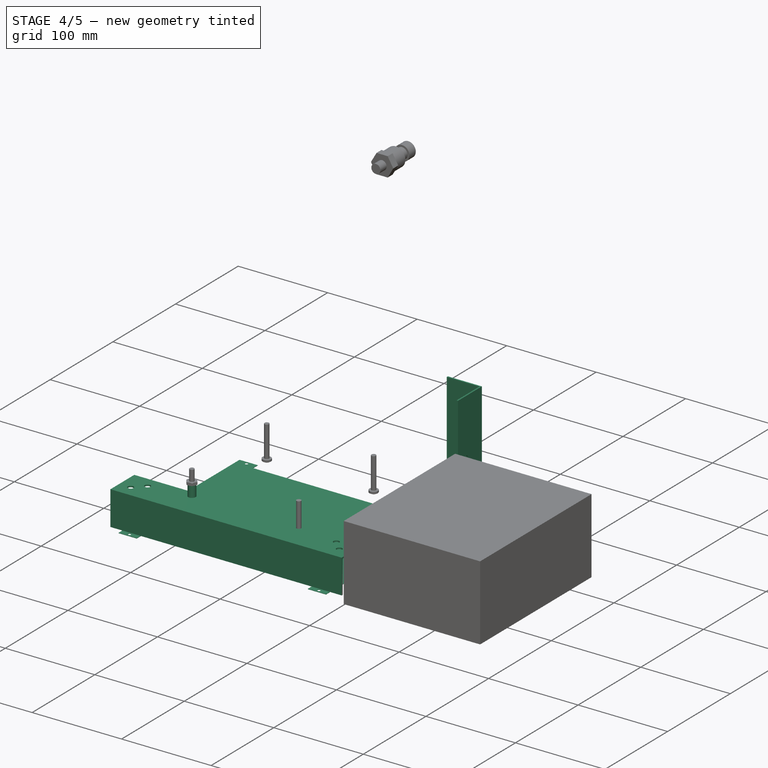
[diagram: stage 4 of 5 — iso view after this stage's code; geometry added in this stage tinted green]
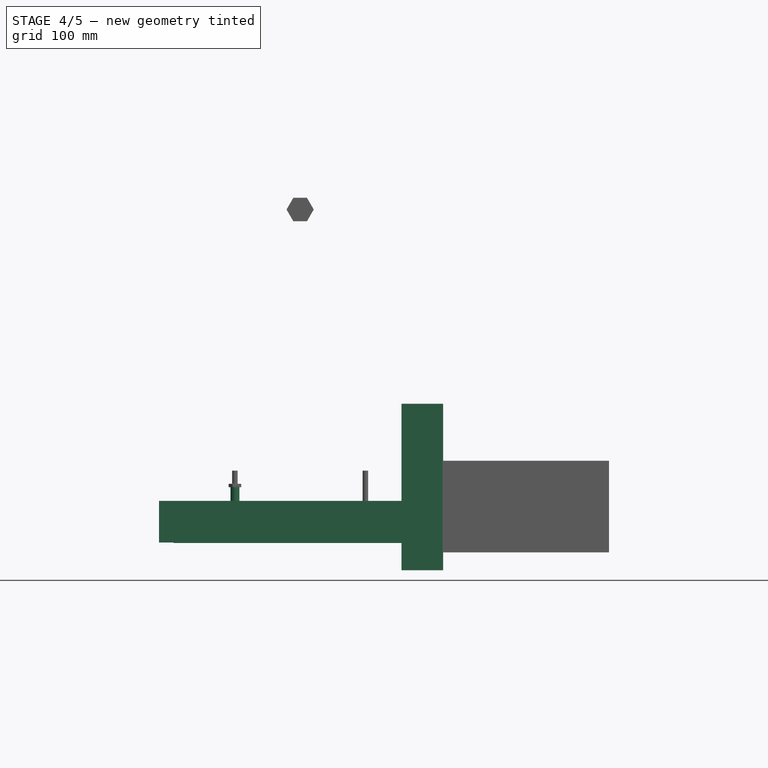
[diagram: stage 4 of 5 — front view after this stage's code; geometry added in this stage tinted green]
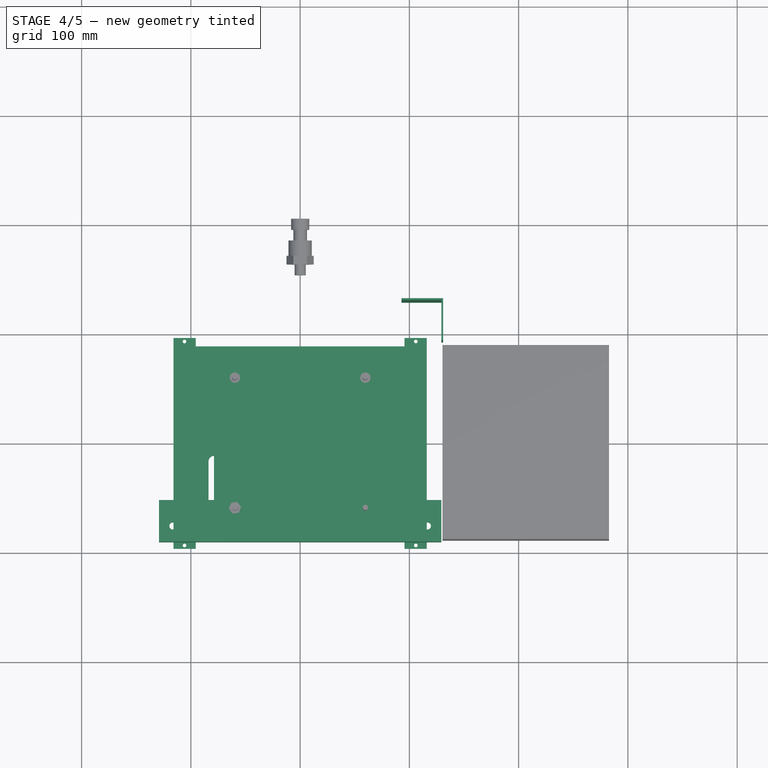
[diagram: stage 4 of 5 — top view after this stage's code; geometry added in this stage tinted green]
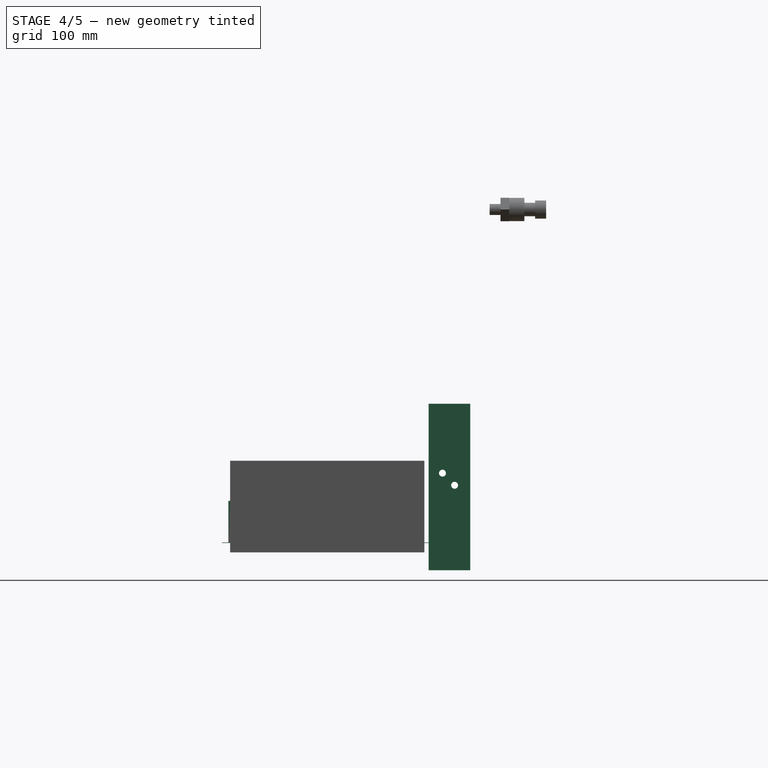
[diagram: stage 4 of 5 — right view after this stage's code; geometry added in this stage tinted green]
FEATURE [Sketcher::SketchObject] Sketch  label="angle-sketch-xy"
  sketch-geometry (6):
    g0: LineSegment StartX=0 StartY=0 StartZ=0 EndX=38.1 EndY=0 EndZ=0
    g1: LineSegment StartX=38.1 StartY=0 StartZ=0 EndX=38.1 EndY=-1.6002 EndZ=0
    g2: LineSegment StartX=38.1 StartY=-1.6002 StartZ=0 EndX=1.6002 EndY=-1.6002 EndZ=0
    g3: LineSegment StartX=1.6002 StartY=-1.6002 StartZ=0 EndX=1.6002 EndY=-38.1 EndZ=0
    g4: LineSegment StartX=1.6002 StartY=-38.1 StartZ=0 EndX=0 EndY=-38.1 EndZ=0
    g5: LineSegment StartX=0 StartY=-38.1 StartZ=0 EndX=0 EndY=0 EndZ=0
  constraints (17):
    c: Coincident(g-1,g0)
    c: Horizontal(g0)
    c: Coincident(g0,g1)
    c: Vertical(g1)
    c: Coincident(g1,g2)
    c: Horizontal(g2)
    c: Coincident(g2,g3)
    c: Vertical(g3)
    c: Coincident(g3,g4)
    c: Horizontal(g4)
    c: Coincident(g4,g5)
    c: Coincident(g5,g0)
    c: Equal(g1,g4)
    c: Equal(g0,g5)
    c: DistanceY(g1) = -1.6002
    c: PointOnObject(g4,g-2)
    c: DistanceY(g5) = 38.1
FEATURE [PartDesign::Pad] Pad  label="angle-template-xy"
  Length = 50.8
  Length2 = 101.6
  Sketch = -> Sketch
  Type = 4
FEATURE [Part::FeaturePython] Clone  label="leg-blank"  # Draft clone (typed FeaturePython)
  Objects = -> [Pad]
  Scale = (1,1,1)
FEATURE [Sketcher::SketchObject] Sketch016  label="burner-support-v2-sketch"
  Placement = pos=(0,-90.5002,-38.1) rot=(0.57735,0.57735,0.57735;2.0944rad)
  sketch-geometry (6):
    g0: LineSegment StartX=0 StartY=0 StartZ=0 EndX=38.1 EndY=0 EndZ=0
    g1: LineSegment StartX=38.1 StartY=0 StartZ=0 EndX=38.1 EndY=-1.6002 EndZ=0
    g2: LineSegment StartX=38.1 StartY=-1.6002 StartZ=0 EndX=1.6002 EndY=-1.6002 EndZ=0
    g3: LineSegment StartX=1.6002 StartY=-1.6002 StartZ=0 EndX=1.6002 EndY=-38.1 EndZ=0
    g4: LineSegment StartX=1.6002 StartY=-38.1 StartZ=0 EndX=0 EndY=-38.1 EndZ=0
    g5: LineSegment StartX=0 StartY=-38.1 StartZ=0 EndX=0 EndY=0 EndZ=0
  constraints (17):
    c: Horizontal(g0)
    c: Coincident(g0,g1)
    c: Vertical(g1)
    c: Coincident(g1,g2)
    c: Horizontal(g2)
    c: Coincident(g2,g3)
    c: Vertical(g3)
    c: Coincident(g3,g4)
    c: Horizontal(g4)
    c: Coincident(g4,g5)
    c: Coincident(g5,g0)
    c: Vertical(g5)
    c: Equal(g4,g1)
    c: DistanceY(g1) = -1.6002
    c: DistanceY(g5) = 38.1
    c: Equal(g0,g5)
    c: Coincident(g0,g-1)
FEATURE [PartDesign::Pad] Pad007  label="burner-support-v2-blank"
  Length = 129.237
  Length2 = 129.237
  Placement = pos=(0,-90.5002,-38.1) rot=(0.57735,0.57735,0.57735;2.0944rad)
  Sketch = -> Sketch016
  Type = 4
FEATURE [Sketcher::SketchObject] Sketch017  label="burner-support-v2-holes001"
  ExternalGeometry = -> [Pad007]
  Placement = pos=(0,-90.5002,-39.7002) rot=(0.707107,0.707107,0;3.14159rad)
  Support = -> Pad007 [Face3]
  sketch-geometry (8):
    g0: Circle CenterX=30.734 CenterY=59.69 CenterZ=0 NormalX=0 NormalY=0 NormalZ=1 Radius=2.54
    g1: Circle CenterX=30.734 CenterY=-59.69 CenterZ=0 NormalX=0 NormalY=0 NormalZ=1 Radius=2.54
    g2: LineSegment [constr] StartX=30.734 StartY=59.69 StartZ=0 EndX=30.734 EndY=-59.69 EndZ=0
    g3: GeomPoint [constr] X=30.734 Y=0 Z=0
    g4: Circle CenterX=25.4 CenterY=-105.437 CenterZ=0 NormalX=0 NormalY=0 NormalZ=1 Radius=3.175
    g5: Circle CenterX=14.3002 CenterY=-116.537 CenterZ=0 NormalX=0 NormalY=0 NormalZ=1 Radius=3.175
    g6: Circle CenterX=14.3002 CenterY=116.537 CenterZ=0 NormalX=0 NormalY=0 NormalZ=1 Radius=3.175
    g7: Circle CenterX=25.4 CenterY=105.437 CenterZ=0 NormalX=0 NormalY=0 NormalZ=1 Radius=3.175
  constraints (21):
    c: Coincident(g2,g0)
    c: Coincident(g2,g1)
    c: Vertical(g2)
    c: PointOnObject(g3,g-1)
    c: Symmetric(g2,g2,g3)
    c: Equal(g0,g1)
    c: Radius(g0) = 2.54
    c: DistanceY(g2) = -119.38
    c: DistanceX(g0,g-4) = 7.366
    c: Radius(g7) = 3.175
    c: Equal(g7,g6)
    c: Equal(g7,g4)
    c: Equal(g7,g5)
    c: DistanceX(g7,g-4) = 12.7
    c: DistanceX(g-4,g6) = -23.7998
    c: DistanceY(g-4,g7) = -23.7998
    c: DistanceY(g-4,g6) = -12.7
    c: DistanceY(g5,g-4) = -12.7
    c: DistanceY(g-4,g4) = 23.7998
    c: DistanceX(g4,g-4) = 12.7
    c: DistanceX(g5,g-4) = 23.7998
FEATURE [PartDesign::Pocket] Pocket007  label="burner-support-v2-1"
  Length = 1.6002
  Placement = pos=(0,-90.5002,-38.1) rot=(0.57735,0.57735,0.57735;2.0944rad)
  Sketch = -> Sketch017
  Type = 0
FEATURE [Sketcher::SketchObject] Sketch018  label="cover-sketch"
  Placement = pos=(0,0,-76.2) rot=(1,0,0;3.14159rad)
  sketch-geometry (26):
    g0: LineSegment StartX=-115.888 StartY=-96.52 StartZ=0 EndX=-115.888 EndY=96.52 EndZ=0
    g1: LineSegment StartX=-115.888 StartY=96.52 StartZ=0 EndX=-95.5675 EndY=96.52 EndZ=0
    g2: LineSegment StartX=-95.5675 StartY=96.52 StartZ=0 EndX=-95.5675 EndY=88.9 EndZ=0
    g3: LineSegment StartX=-95.5675 StartY=88.9 StartZ=0 EndX=95.5675 EndY=88.9 EndZ=0
    g4: LineSegment StartX=95.5675 StartY=88.9 StartZ=0 EndX=95.5675 EndY=96.52 EndZ=0
    g5: LineSegment StartX=95.5675 StartY=96.52 StartZ=0 EndX=115.888 EndY=96.52 EndZ=0
    g6: LineSegment StartX=115.888 StartY=96.52 StartZ=0 EndX=115.888 EndY=-96.52 EndZ=0
    g7: LineSegment StartX=115.888 StartY=-96.52 StartZ=0 EndX=95.5675 EndY=-96.52 EndZ=0
    g8: LineSegment StartX=95.5675 StartY=-96.52 StartZ=0 EndX=95.5675 EndY=-88.9 EndZ=0
    g9: LineSegment StartX=95.5675 StartY=-88.9 StartZ=0 EndX=-95.5675 EndY=-88.9 EndZ=0
    g10: LineSegment StartX=-95.5675 StartY=-88.9 StartZ=0 EndX=-95.5675 EndY=-96.52 EndZ=0
    g11: LineSegment StartX=-95.5675 StartY=-96.52 StartZ=0 EndX=-115.888 EndY=-96.52 EndZ=0
    g12: LineSegment [constr] StartX=-115.888 StartY=0 StartZ=0 EndX=115.888 EndY=0 EndZ=0
    g13: LineSegment [constr] StartX=0 StartY=88.9 StartZ=0 EndX=0 EndY=-88.9 EndZ=0
    g14: Circle CenterX=-105.855 CenterY=-93.345 CenterZ=0 NormalX=0 NormalY=0 NormalZ=1 Radius=1.651
    g15: Circle CenterX=105.855 CenterY=-93.345 CenterZ=0 NormalX=0 NormalY=0 NormalZ=1 Radius=1.651
    g16: Circle CenterX=105.855 CenterY=93.345 CenterZ=0 NormalX=0 NormalY=0 NormalZ=1 Radius=1.651
    g17: Circle CenterX=-105.855 CenterY=93.345 CenterZ=0 NormalX=0 NormalY=0 NormalZ=1 Radius=1.651
    g18: LineSegment [constr] StartX=-105.855 StartY=-93.345 StartZ=0 EndX=105.855 EndY=-93.345 EndZ=0
    g19: LineSegment [constr] StartX=105.855 StartY=-93.345 StartZ=0 EndX=105.855 EndY=93.345 EndZ=0
    g20: LineSegment [constr] StartX=105.855 StartY=93.345 StartZ=0 EndX=-105.855 EndY=93.345 EndZ=0
    g21: LineSegment [constr] StartX=-105.855 StartY=93.345 StartZ=0 EndX=-105.855 EndY=-93.345 EndZ=0
    g22: LineSegment StartX=-78.8035 StartY=57.15 StartZ=0 EndX=-78.8035 EndY=11.43 EndZ=0
    g23: LineSegment StartX=-83.8835 StartY=52.07 StartZ=0 EndX=-83.8835 EndY=16.51 EndZ=0
    g24: ArcOfCircle CenterX=-78.8035 CenterY=16.51 CenterZ=0 NormalX=0 NormalY=0 NormalZ=1 Radius=5.08 StartAngle=3.14159 EndAngle=4.71239
    g25: ArcOfCircle CenterX=-78.8035 CenterY=52.07 CenterZ=0 NormalX=0 NormalY=0 NormalZ=1 Radius=5.08 StartAngle=1.5708 EndAngle=3.14159
  constraints (76):
    c: Vertical(g0)
    c: Coincident(g0,g1)
    c: Horizontal(g1)
    c: Coincident(g1,g2)
    c: Vertical(g2)
    c: Coincident(g2,g3)
    c: Horizontal(g3)
    c: Coincident(g3,g4)
    c: Vertical(g4)
    c: Coincident(g4,g5)
    c: Horizontal(g5)
    c: Coincident(g5,g6)
    c: Vertical(g6)
    c: Coincident(g6,g7)
    c: Horizontal(g7)
    c: Coincident(g7,g8)
    c: Vertical(g8)
    c: Coincident(g8,g9)
    c: Horizontal(g9)
    c: Coincident(g9,g10)
    c: Vertical(g10)
    c: Coincident(g10,g11)
    c: Horizontal(g11)
    c: Coincident(g0,g11)
    c: Equal(g1,g11)
    c: Equal(g11,g7)
    c: Equal(g7,g5)
    c: Equal(g4,g8)
    c: Equal(g8,g10)
    c: Equal(g10,g2)
    c: DistanceY(g2) = -7.62
    c: DistanceY(g2,g9) = -177.8
    c: DistanceX(g11) = -20.32
    c: DistanceX(g0,g6) = 231.775
    c: PointOnObject(g12,g0)
    c: PointOnObject(g12,g6)
    c: Horizontal(g12)
    c: PointOnObject(g13,g3)
    c: PointOnObject(g13,g9)
    c: Vertical(g13)
    c: Symmetric(g12,g12,g-1)
    c: Symmetric(g13,g13,g-1)
    c: Radius(g14) = 1.651
    c: Equal(g17,g16)
    c: Equal(g16,g15)
    c: Equal(g15,g14)
    c: Coincident(g18,g19)
    c: Coincident(g19,g20)
    c: Coincident(g20,g21)
    c: Coincident(g21,g18)
    c: Horizontal(g18)
    c: Horizontal(g20)
    c: Vertical(g19)
    c: Vertical(g21)
    c: Coincident(g18,g14)
    c: Coincident(g19,g16)
    c: Coincident(g15,g18)
    c: Coincident(g20,g17)
    c: DistanceY(g0,g14) = 3.175
    c: DistanceY(g17,g0) = 3.175
    c: DistanceX(g14,g0) = -10.033
    c: DistanceX(g15,g6) = 10.033
    c: Vertical(g22)
    c: Vertical(g23)
    c: PointOnObject(g24,g22)
    c: Coincident(g24,g22)
    c: PointOnObject(g25,g22)
    c: Coincident(g25,g22)
    c: Coincident(g23,g25)
    c: Coincident(g23,g24)
    c: Tangent(g25,g23)
    c: Tangent(g24,g23)
    c: DistanceY(g22,g22) = -45.72
    c: DistanceX(g25,g23) = -5.08
    c: DistanceX(g22,g0) = -37.084
    c: DistanceY(g2,g22) = -31.75
FEATURE [PartDesign::Pad] Pad008  label="cover"
  Length = 0.4318
  Length2 = 100
  Placement = pos=(0,0,-76.2) rot=(1,0,0;3.14159rad)
  Sketch = -> Sketch018
  Type = 0
FEATURE [App::DocumentObjectGroup] Group006  label="constraints"
FEATURE [PartDesign::Pocket] Pocket  label="leg-template"
  Length = 1.6002
  Sketch = -> Sketch001
  Type = 0
FEATURE [Part::FeaturePython] Clone006  label="leg1"  # Draft clone (typed FeaturePython)
  Objects = -> [Pocket]
  Placement = pos=(-130.837,130.837,0) rot=(0,0,1;0rad)
  Scale = (1,1,1)
FEATURE [Part::Mirroring] Part__Mirroring006  label="leg2"
  Base = (0,0,0)
  Normal = (0,1,0)
  Source = -> Clone006
FEATURE [Part::Mirroring] Part__Mirroring007  label="leg3"
  Base = (0,0,0)
  Normal = (1,0,0)
  Source = -> Part__Mirroring006
FEATURE [Part::Mirroring] Part__Mirroring008  label="leg4"
  Base = (0,0,0)
  Normal = (0,1,0)
  Source = -> Part__Mirroring007
FEATURE [Part::Mirroring] Part__Mirroring010  label="spring3"
  Base = (0,0,0)
  Normal = (0,1,0)
  Placement = pos=(0,0,5.08) rot=(0,0,1;0rad)
  Source = -> Part__Mirroring009
FEATURE [Part::Mirroring] Part__Mirroring011  label="spring4"
  Base = (0,0,0)
  Normal = (1,0,0)
  Source = -> Part__Mirroring010
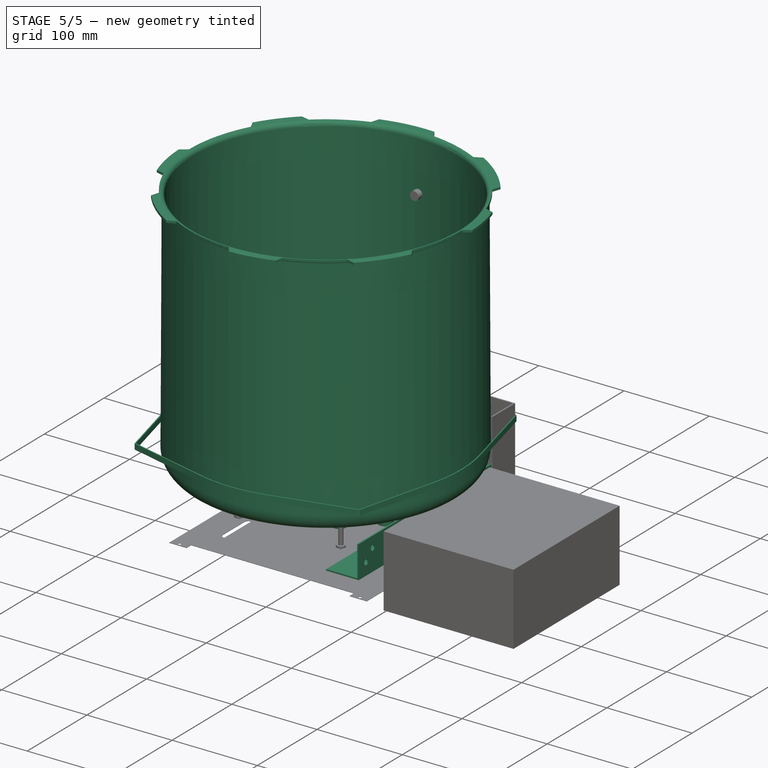
[diagram: stage 5 of 5 — iso view after this stage's code; geometry added in this stage tinted green]
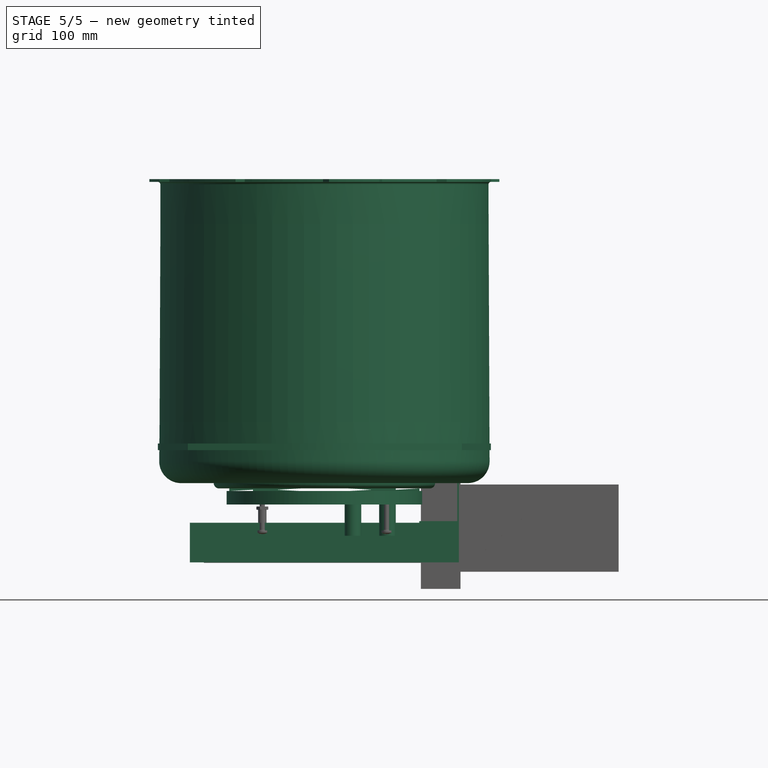
[diagram: stage 5 of 5 — front view after this stage's code; geometry added in this stage tinted green]
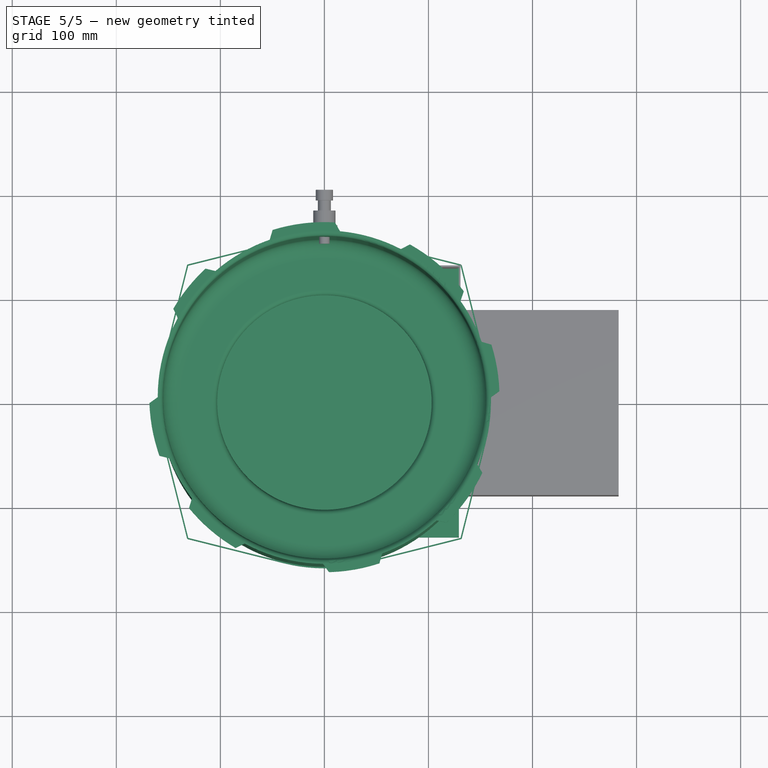
[diagram: stage 5 of 5 — top view after this stage's code; geometry added in this stage tinted green]
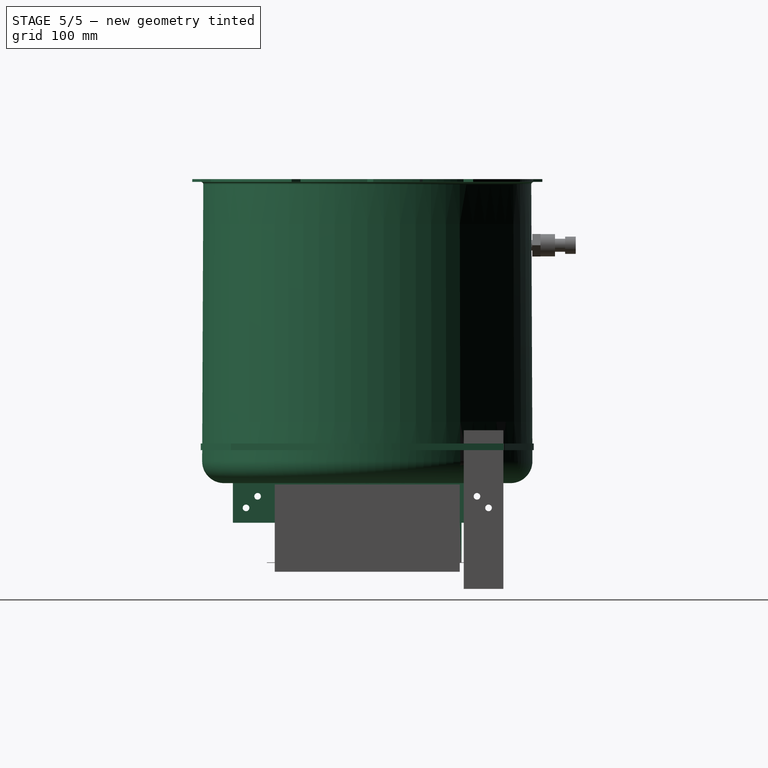
[diagram: stage 5 of 5 — right view after this stage's code; geometry added in this stage tinted green]
FEATURE [Sketcher::SketchObject] Sketch001  label="leg-holes-1"
  ExternalGeometry = -> [Clone]
  Placement = pos=(0,0,0) rot=(0.57735,-0.57735,-0.57735;2.0944rad)
  Support = -> Pad [Face6]
  sketch-geometry (2):
    g0: Circle CenterX=25.4 CenterY=-12.7 CenterZ=0 NormalX=0 NormalY=0 NormalZ=1 Radius=3.175
    g1: Circle CenterX=14.3002 CenterY=-23.7998 CenterZ=0 NormalX=0 NormalY=0 NormalZ=1 Radius=3.175
  constraints (6):
    c: Equal(g1,g0)
    c: DistanceY(g-3,g0) = -63.5
    c: DistanceX(g-3,g0) = -12.7
    c: DistanceX(g0,g1) = -11.0998
    c: DistanceY(g0,g1) = -11.0998
    c: Radius(g0) = 3.175
FEATURE [Sketcher::SketchObject] Sketch003  label="angle-sketch-xz"
  Placement = pos=(-129.237,0,-38.1) rot=(-1,0,0;1.5708rad)
  sketch-geometry (6):
    g0: LineSegment StartX=0 StartY=0 StartZ=0 EndX=38.1 EndY=0 EndZ=0
    g1: LineSegment StartX=38.1 StartY=0 StartZ=0 EndX=38.1 EndY=-1.6002 EndZ=0
    g2: LineSegment StartX=38.1 StartY=-1.6002 StartZ=0 EndX=1.6002 EndY=-1.6002 EndZ=0
    g3: LineSegment StartX=1.6002 StartY=-1.6002 StartZ=0 EndX=1.6002 EndY=-38.1 EndZ=0
    g4: LineSegment StartX=1.6002 StartY=-38.1 StartZ=0 EndX=0 EndY=-38.1 EndZ=0
    g5: LineSegment StartX=0 StartY=-38.1 StartZ=0 EndX=0 EndY=0 EndZ=0
  constraints (17):
    c: Coincident(g-1,g0)
    c: Horizontal(g0)
    c: Coincident(g0,g1)
    c: Vertical(g1)
    c: Coincident(g1,g2)
    c: Horizontal(g2)
    c: Coincident(g2,g3)
    c: Vertical(g3)
    c: Coincident(g3,g4)
    c: Horizontal(g4)
    c: Coincident(g4,g5)
    c: Coincident(g5,g0)
    c: Equal(g1,g4)
    c: Equal(g0,g5)
    c: DistanceY(g1) = -1.6002
    c: PointOnObject(g4,g-2)
    c: DistanceY(g5) = 38.1
FEATURE [PartDesign::Pad] Pad001  label="angle-template-xz"
  Length = 129.237
  Length2 = 129.237
  Placement = pos=(-129.237,0,-38.1) rot=(-1,0,0;1.5708rad)
  Sketch = -> Sketch003
  Type = 4
FEATURE [Part::FeaturePython] Clone005  label="pot-support-blank"  # Draft clone (typed FeaturePython)
  Objects = -> [Pad001]
  Placement = pos=(-129.237,0,-38.1) rot=(-1,0,0;1.5708rad)
  Scale = (1,1,1)
FEATURE [Sketcher::SketchObject] Sketch005  label="pot-support-1-holes"
  ExternalGeometry = -> [Clone005]
  Placement = pos=(-129.237,0,-38.1) rot=(0,-1,0;1.5708rad)
  Support = -> Clone005 [Face6]
  sketch-geometry (4):
    g0: Circle CenterX=25.4 CenterY=105.437 CenterZ=0 NormalX=0 NormalY=0 NormalZ=1 Radius=3.175
    g1: Circle CenterX=14.3002 CenterY=116.537 CenterZ=0 NormalX=0 NormalY=0 NormalZ=1 Radius=3.175
    g2: Circle CenterX=25.4 CenterY=-105.437 CenterZ=0 NormalX=0 NormalY=0 NormalZ=1 Radius=3.175
    g3: Circle CenterX=14.3002 CenterY=-116.537 CenterZ=0 NormalX=0 NormalY=0 NormalZ=1 Radius=3.175
  constraints (12):
    c: Radius(g0) = 3.175
    c: Equal(g0,g1)
    c: DistanceY(g-3,g1) = -12.7
    c: DistanceY(g1,g0) = -11.0998
    c: DistanceX(g-3,g0) = -12.7
    c: DistanceX(g0,g1) = -11.0998
    c: Equal(g3,g2)
    c: Equal(g2,g1)
    c: DistanceY(g3,g-4) = -12.7
    c: DistanceX(g2,g3) = -11.0998
    c: DistanceY(g2,g3) = -11.0998
    c: DistanceX(g2,g-4) = 12.7
FEATURE [PartDesign::Pocket] Pocket002  label="pot-support-part1"
  Length = 1.6002
  Placement = pos=(-129.237,0,-38.1) rot=(-1,0,0;1.5708rad)
  Sketch = -> Sketch005
  Type = 0
FEATURE [Sketcher::SketchObject] Sketch006  label="pot-profile"
  Placement = pos=(0,0,0) rot=(1,0,0;1.5708rad)
  sketch-geometry (17):
    g0: LineSegment StartX=106.375 StartY=0 StartZ=0 EndX=137.795 EndY=0 EndZ=0
    g1: ArcOfCircle CenterX=137.795 CenterY=20.9552 CenterZ=0 NormalX=0 NormalY=0 NormalZ=1 Radius=20.9552 StartAngle=4.71239 EndAngle=6.28729
    g2: LineSegment StartX=158.75 StartY=21.0412 StartZ=0 EndX=157.658 EndY=286.959 EndZ=0
    g3: ArcOfCircle CenterX=160.198 CenterY=286.969 CenterZ=0 NormalX=0 NormalY=0 NormalZ=1 Radius=2.54002 StartAngle=1.57079 EndAngle=3.1457
    g4: LineSegment StartX=160.198 StartY=289.509 StartZ=0 EndX=168.275 EndY=289.509 EndZ=0
    g5: LineSegment StartX=168.275 StartY=289.509 StartZ=0 EndX=168.275 EndY=292.1 EndZ=0
    g6: LineSegment StartX=168.275 StartY=292.1 StartZ=0 EndX=160.198 EndY=292.1 EndZ=0
    g7: ArcOfCircle CenterX=160.198 CenterY=286.969 CenterZ=0 NormalX=0 NormalY=0 NormalZ=1 Radius=5.13084 StartAngle=1.57079 EndAngle=3.1457
    g8: LineSegment StartX=155.067 StartY=286.948 StartZ=0 EndX=156.159 EndY=21.0306 EndZ=0
    g9: ArcOfCircle CenterX=137.795 CenterY=20.9552 CenterZ=0 NormalX=0 NormalY=0 NormalZ=1 Radius=18.3644 StartAngle=4.71239 EndAngle=6.28729
    g10: LineSegment StartX=137.795 StartY=2.59082 StartZ=0 EndX=108.228 EndY=2.59082 EndZ=0
    g11: ArcOfCircle CenterX=108.228 CenterY=-2.51458 CenterZ=0 NormalX=0 NormalY=0 NormalZ=1 Radius=5.1054 StartAngle=1.5708 EndAngle=3.14159
    g12: LineSegment StartX=103.122 StartY=-2.51458 StartZ=0 EndX=0 EndY=-2.51458 EndZ=0
    g13: ArcOfCircle CenterX=101.27 CenterY=0 CenterZ=0 NormalX=0 NormalY=0 NormalZ=1 Radius=5.1054 StartAngle=4.71239 EndAngle=6.28319
    g14: LineSegment StartX=101.27 StartY=-5.1054 StartZ=0 EndX=0 EndY=-5.1054 EndZ=0
    g15: LineSegment StartX=0 StartY=-2.51458 StartZ=0 EndX=0 EndY=-5.1054 EndZ=0
    g16: LineSegment [constr] StartX=106.375 StartY=0 StartZ=0 EndX=103.784 EndY=0 EndZ=0
  constraints (55):
    c: Horizontal(g0)
    c: Coincident(g1,g0)
    c: Coincident(g2,g1)
    c: Coincident(g3,g2)
    c: Coincident(g4,g3)
    c: Coincident(g5,g4)
    c: Vertical(g5)
    c: Horizontal(g4)
    c: Coincident(g6,g5)
    c: Horizontal(g6)
    c: Coincident(g7,g3)
    c: Coincident(g7,g6)
    c: Coincident(g8,g7)
    c: Tangent(g1,g0)
    c: Tangent(g1,g2)
    c: Coincident(g9,g1)
    c: Coincident(g9,g8)
    c: Tangent(g9,g8)
    c: Coincident(g10,g9)
    c: Tangent(g10,g9)
    c: Parallel(g10,g0)
    c: Tangent(g11,g10)
    c: PointOnObject(g12,g-2)
    c: Horizontal(g12)
    c: DistanceX(g7,g2) = 2.5908
    c: DistanceY(g-1,g5) = 292.1
    c: DistanceX(g0,g1) = 20.955
    c: DistanceY(g0,g13) = -5.1054
    c: Coincident(g11,g10)
    c: DistanceX(g-1,g0) = 106.375
    c: DistanceX(g1,g12) = -158.75
    c: Tangent(g4,g3)
    c: Tangent(g6,g7)
    c: DistanceX(g7,g5) = 13.208
    c: DistanceX(g12,g4) = 168.275
    c: PointOnObject(g0,g-1)
    c: Coincident(g14,g13)
    c: PointOnObject(g14,g-2)
    c: Horizontal(g14)
    c: Tangent(g13,g14)
    c: Tangent(g2,g3)
    c: Tangent(g8,g7)
    c: Coincident(g11,g12)
    c: Coincident(g13,g0)
    c: PointOnObject(g13,g-1)
    c: Parallel(g2,g8)
    c: Coincident(g15,g12)
    c: Coincident(g15,g14)
    c: Equal(g15,g5)
    c: PointOnObject(g11,g12)
    c: Coincident(g16,g0)
    c: PointOnObject(g16,g11)
    c: Horizontal(g16)
    c: Equal(g16,g15)
    c: DistanceX(g3,g2) = -2.54
FEATURE [Part::Revolution] Revolve  label="pot-shape"
  Angle = 360
  Axis = (0,0,1)
  Base = (0,0,0)
  Solid = false
  Source = -> Sketch006
FEATURE [Sketcher::SketchObject] Sketch007  label="tflex-sketch"
  Placement = pos=(0,0,-5.1054) rot=(0,0,1;0rad)
  sketch-geometry (51):
    g0: LineSegment StartX=0 StartY=-31.75 StartZ=0 EndX=45.72 EndY=-31.75 EndZ=0
    g1: LineSegment StartX=45.72 StartY=-31.75 StartZ=0 EndX=45.72 EndY=31.75 EndZ=0
    g2: LineSegment StartX=45.72 StartY=31.75 StartZ=0 EndX=0 EndY=31.75 EndZ=0
    g3: LineSegment StartX=0 StartY=31.75 StartZ=0 EndX=0 EndY=-31.75 EndZ=0
    g4: LineSegment StartX=-45.72 StartY=31.75 StartZ=0 EndX=-91.44 EndY=31.75 EndZ=0
    g5: LineSegment StartX=-91.44 StartY=31.75 StartZ=0 EndX=-91.44 EndY=-31.75 EndZ=0
    g6: LineSegment StartX=-91.44 StartY=-31.75 StartZ=0 EndX=-45.72 EndY=-31.75 EndZ=0
    g7: LineSegment StartX=-45.72 StartY=-31.75 StartZ=0 EndX=-45.72 EndY=31.75 EndZ=0
    g8: LineSegment StartX=45.72 StartY=-31.75 StartZ=0 EndX=91.44 EndY=-31.75 EndZ=0
    g9: LineSegment StartX=91.44 StartY=-31.75 StartZ=0 EndX=91.44 EndY=31.75 EndZ=0
    g10: LineSegment StartX=91.44 StartY=31.75 StartZ=0 EndX=45.72 EndY=31.75 EndZ=0
    g11: LineSegment StartX=45.72 StartY=31.75 StartZ=0 EndX=45.72 EndY=-31.75 EndZ=0
    g12: LineSegment StartX=-45.72 StartY=-31.75 StartZ=0 EndX=0 EndY=-31.75 EndZ=0
    g13: LineSegment StartX=0 StartY=-31.75 StartZ=0 EndX=0 EndY=31.75 EndZ=0
    g14: LineSegment StartX=0 StartY=31.75 StartZ=0 EndX=-45.72 EndY=31.75 EndZ=0
    g15: LineSegment StartX=-45.72 StartY=31.75 StartZ=0 EndX=-45.72 EndY=-31.75 EndZ=0
    g16: GeomPoint [constr] X=0 Y=0 Z=0
    g17: GeomPoint [constr] X=-45.72 Y=0 Z=0
    g18: GeomPoint [constr] X=45.72 Y=0 Z=0
    g19: LineSegment StartX=-22.86 StartY=-31.75 StartZ=0 EndX=22.86 EndY=-31.75 EndZ=0
    g20: LineSegment StartX=22.86 StartY=-31.75 StartZ=0 EndX=22.86 EndY=-95.25 EndZ=0
    g21: LineSegment StartX=22.86 StartY=-95.25 StartZ=0 EndX=-22.86 EndY=-95.25 EndZ=0
    g22: LineSegment StartX=-22.86 StartY=-95.25 StartZ=0 EndX=-22.86 EndY=-31.75 EndZ=0
    g23: LineSegment StartX=-68.58 StartY=-31.75 StartZ=0 EndX=-22.86 EndY=-31.75 EndZ=0
    g24: LineSegment StartX=-22.86 StartY=-31.75 StartZ=0 EndX=-22.86 EndY=-95.25 EndZ=0
    g25: LineSegment StartX=-22.86 StartY=-95.25 StartZ=0 EndX=-68.58 EndY=-95.25 EndZ=0
    g26: LineSegment StartX=-68.58 StartY=-95.25 StartZ=0 EndX=-68.58 EndY=-31.75 EndZ=0
    g27: LineSegment StartX=22.86 StartY=-31.75 StartZ=0 EndX=68.58 EndY=-31.75 EndZ=0
    g28: LineSegment StartX=68.58 StartY=-31.75 StartZ=0 EndX=68.58 EndY=-95.25 EndZ=0
    g29: LineSegment StartX=68.58 StartY=-95.25 StartZ=0 EndX=22.86 EndY=-95.25 EndZ=0
    g30: LineSegment StartX=22.86 StartY=-95.25 StartZ=0 EndX=22.86 EndY=-31.75 EndZ=0
    g31: GeomPoint [constr] X=-22.86 Y=-63.5 Z=0
    g32: GeomPoint [constr] X=22.86 Y=-63.5 Z=0
    g33: GeomPoint [constr] X=68.58 Y=-31.75 Z=0
    g34: LineSegment StartX=-68.58 StartY=31.75 StartZ=0 EndX=-22.86 EndY=31.75 EndZ=0
    g35: LineSegment StartX=-22.86 StartY=31.75 StartZ=0 EndX=-22.86 EndY=95.25 EndZ=0
    g36: LineSegment StartX=-22.86 StartY=95.25 StartZ=0 EndX=-68.58 EndY=95.25 EndZ=0
    g37: LineSegment StartX=-68.58 StartY=95.25 StartZ=0 EndX=-68.58 EndY=31.75 EndZ=0
    g38: LineSegment StartX=-22.86 StartY=31.75 StartZ=0 EndX=22.86 EndY=31.75 EndZ=0
    g39: LineSegment StartX=22.86 StartY=31.75 StartZ=0 EndX=22.86 EndY=95.25 EndZ=0
    g40: LineSegment StartX=22.86 StartY=95.25 StartZ=0 EndX=-22.86 EndY=95.25 EndZ=0
    g41: LineSegment StartX=-22.86 StartY=95.25 StartZ=0 EndX=-22.86 EndY=31.75 EndZ=0
    g42: LineSegment StartX=22.86 StartY=31.75 StartZ=0 EndX=68.58 EndY=31.75 EndZ=0
    g43: LineSegment StartX=68.58 StartY=31.75 StartZ=0 EndX=68.58 EndY=95.25 EndZ=0
    g44: LineSegment StartX=68.58 StartY=95.25 StartZ=0 EndX=22.86 EndY=95.25 EndZ=0
    g45: LineSegment StartX=22.86 StartY=95.25 StartZ=0 EndX=22.86 EndY=31.75 EndZ=0
    g46: GeomPoint [constr] X=-22.86 Y=63.5 Z=0
    g47: GeomPoint [constr] X=22.86 Y=63.5 Z=0
    g48: GeomPoint [constr] X=68.58 Y=31.75 Z=0
    g49: GeomPoint [constr] X=91.44 Y=0 Z=0
    g50: GeomPoint [constr] X=0 Y=-95.25 Z=0
  constraints (126):
    c: Coincident(g0,g1)
    c: Coincident(g1,g2)
    c: Coincident(g2,g3)
    c: Horizontal(g0)
    c: Horizontal(g2)
    c: Vertical(g1)
    c: Vertical(g3)
    c: DistanceX(g0) = 45.72
    c: DistanceY(g3) = -63.5
    c: Coincident(g0,g3)
    c: Coincident(g4,g5)
    c: Coincident(g5,g6)
    c: Coincident(g6,g7)
    c: Coincident(g7,g4)
    c: Horizontal(g4)
    c: Horizontal(g6)
    c: Vertical(g5)
    c: Vertical(g7)
    c: Coincident(g8,g9)
    c: Coincident(g9,g10)
    c: Coincident(g10,g11)
    c: Coincident(g11,g8)
    c: Horizontal(g8)
    c: Horizontal(g10)
    c: Vertical(g9)
    c: Vertical(g11)
    c: Coincident(g12,g13)
    c: Coincident(g13,g14)
    c: Coincident(g14,g15)
    c: Coincident(g15,g12)
    c: Horizontal(g12)
    c: Horizontal(g14)
    c: Vertical(g13)
    c: Vertical(g15)
    c: Equal(g14,g4)
    c: Equal(g4,g2)
    c: Equal(g2,g10)
    c: Equal(g5,g15)
    c: Equal(g15,g1)
    c: Equal(g1,g11)
    c: PointOnObject(g16,g13)
    c: Symmetric(g13,g13,g16)
    c: Symmetric(g3,g3,g16)
    c: Symmetric(g7,g7,g17)
    c: Symmetric(g15,g15,g17)
    c: Symmetric(g11,g11,g18)
    c: Symmetric(g1,g1,g18)
    c: Coincident(g19,g20)
    c: Coincident(g20,g21)
    c: Coincident(g21,g22)
    c: Coincident(g22,g19)
    c: Horizontal(g19)
    c: Horizontal(g21)
    c: Vertical(g20)
    c: Vertical(g22)
    c: Coincident(g23,g24)
    c: Coincident(g24,g25)
    c: Coincident(g25,g26)
    c: Coincident(g26,g23)
    c: Horizontal(g23)
    c: Horizontal(g25)
    c: Vertical(g24)
    c: Vertical(g26)
    c: Coincident(g27,g28)
    c: Coincident(g28,g29)
    c: Coincident(g29,g30)
    c: Coincident(g30,g27)
    c: Horizontal(g27)
    c: Horizontal(g29)
    c: Vertical(g28)
    c: Vertical(g30)
    c: Equal(g22,g26)
    c: Equal(g26,g30)
    c: Equal(g30,g5)
    c: Equal(g23,g19)
    c: Equal(g19,g27)
    c: Equal(g27,g14)
    c: Symmetric(g24,g24,g31)
    c: Symmetric(g22,g22,g31)
    c: Symmetric(g30,g30,g32)
    c: Symmetric(g20,g20,g32)
    c: PointOnObject(g33,g8)
    c: Symmetric(g8,g8,g33)
    c: PointOnObject(g33,g28)
    c: PointOnObject(g33,g27)
    c: Coincident(g34,g35)
    c: Coincident(g35,g36)
    c: Coincident(g36,g37)
    c: Coincident(g37,g34)
    c: Horizontal(g34)
    c: Horizontal(g36)
    c: Vertical(g35)
    c: Vertical(g37)
    c: Coincident(g38,g39)
    c: Coincident(g39,g40)
    c: Coincident(g40,g41)
    c: Coincident(g41,g38)
    c: Horizontal(g38)
    c: Horizontal(g40)
    c: Vertical(g39)
    c: Vertical(g41)
    c: Coincident(g42,g43)
    c: Coincident(g43,g44)
    c: Coincident(g44,g45)
    c: Coincident(g45,g42)
    c: Horizontal(g42)
    c: Horizontal(g44)
    c: Vertical(g43)
    c: Vertical(g45)
    c: Equal(g45,g41)
    c: Equal(g41,g37)
    c: Equal(g37,g5)
    c: Equal(g34,g38)
    c: Equal(g38,g42)
    c: Equal(g42,g2)
    c: Symmetric(g35,g35,g46)
    c: Symmetric(g41,g41,g46)
    c: Symmetric(g39,g39,g47)
    c: Symmetric(g45,g45,g47)
    c: Symmetric(g10,g10,g48)
    c: PointOnObject(g48,g43)
    c: PointOnObject(g48,g42)
    c: Symmetric(g9,g9,g49)
    c: PointOnObject(g49,g-1)
    c: Symmetric(g21,g21,g50)
    c: PointOnObject(g50,g-2)
FEATURE [PartDesign::Pad] Pad002  label="tflex-pads"
  Length = 2.54
  Length2 = 100
  Placement = pos=(0,0,-5.1054) rot=(0,0,1;0rad)
  Reversed = true
  Sketch = -> Sketch007
  Type = 0
FEATURE [Sketcher::SketchObject] Sketch010  label="pot-support-bot-holes-sketch"
  ExternalGeometry = -> [Pocket002]
  Placement = pos=(-129.237,0,-38.1) rot=(0,1,0;3.14159rad)
  Support = -> Pocket002 [Face1]
  sketch-geometry (8):
    g0: Circle CenterX=-23.7998 CenterY=-65.0766 CenterZ=0 NormalX=0 NormalY=0 NormalZ=1 Radius=3.175
    g1: Circle CenterX=-12.7 CenterY=-76.2272 CenterZ=0 NormalX=0 NormalY=0 NormalZ=1 Radius=3.175
    g2: LineSegment [constr] StartX=-23.7998 StartY=-65.0766 StartZ=0 EndX=-23.7998 EndY=65.0766 EndZ=0
    g3: LineSegment [constr] StartX=-12.7 StartY=-76.2272 StartZ=0 EndX=-12.7 EndY=76.2272 EndZ=0
    g4: GeomPoint [constr] X=-23.7998 Y=0 Z=0
    g5: GeomPoint [constr] X=-12.7 Y=0 Z=0
    g6: Circle CenterX=-23.7998 CenterY=65.0766 CenterZ=0 NormalX=0 NormalY=0 NormalZ=1 Radius=3.175
    g7: Circle CenterX=-12.7 CenterY=76.2272 CenterZ=0 NormalX=0 NormalY=0 NormalZ=1 Radius=3.175
  constraints (18):
    c: Equal(g1,g0)
    c: Radius(g0) = 3.175
    c: DistanceX(g1,g0) = -11.0998
    c: DistanceX(g-1,g1) = -12.7
    c: DistanceY(g-3,g0) = 64.1604
    c: DistanceY(g1,g-3) = -53.0098
    c: Coincident(g2,g0)
    c: Vertical(g2)
    c: Coincident(g3,g1)
    c: Vertical(g3)
    c: PointOnObject(g4,g-1)
    c: PointOnObject(g5,g-1)
    c: Symmetric(g3,g3,g5)
    c: Symmetric(g2,g2,g4)
    c: Coincident(g6,g2)
    c: Coincident(g7,g3)
    c: Equal(g7,g6)
    c: Equal(g6,g1)
FEATURE [PartDesign::Pocket] Pocket003  label="pot-support-1"
  Length = 1.6002
  Placement = pos=(-129.237,0,-38.1) rot=(-1,0,0;1.5708rad)
  Sketch = -> Sketch010
  Type = 0
FEATURE [Part::Mirroring] Part__Mirroring  label="pot-support-2"
  Base = (0,0,0)
  Normal = (1,0,0)
  Placement = pos=(0,0.0127,0) rot=(0,0,1;0rad)
  Source = -> Pocket003
FEATURE [Sketcher::SketchObject] Sketch012  label="clamp-sketch"
  Placement = pos=(0,0,31.75) rot=(0,0,1;0rad)
  sketch-geometry (34):
    g0: LineSegment [constr] StartX=-130.837 StartY=130.837 StartZ=0 EndX=130.837 EndY=130.837 EndZ=0
    g1: LineSegment [constr] StartX=130.837 StartY=130.837 StartZ=0 EndX=130.837 EndY=-130.837 EndZ=0
    g2: LineSegment [constr] StartX=130.837 StartY=-130.837 StartZ=0 EndX=-130.837 EndY=-130.837 EndZ=0
    g3: LineSegment [constr] StartX=-130.837 StartY=-130.837 StartZ=0 EndX=-130.837 EndY=130.837 EndZ=0
    g4: GeomPoint [constr] X=0 Y=130.837 Z=0
    g5: GeomPoint [constr] X=-130.837 Y=0 Z=0
    g6: ArcOfCircle CenterX=0 CenterY=0 CenterZ=0 NormalX=0 NormalY=0 NormalZ=1 Radius=158.75 StartAngle=1.3249 EndAngle=1.81669
    g7: LineSegment StartX=-130.837 StartY=130.837 StartZ=0 EndX=-38.6432 EndY=153.975 EndZ=0
    g8: LineSegment StartX=38.6432 StartY=153.975 StartZ=0 EndX=130.837 EndY=130.837 EndZ=0
    g9: ArcOfCircle CenterX=0 CenterY=0 CenterZ=0 NormalX=0 NormalY=0 NormalZ=1 Radius=158.75 StartAngle=6.03729 EndAngle=6.52908
    g10: ArcOfCircle CenterX=0 CenterY=0 CenterZ=0 NormalX=0 NormalY=0 NormalZ=1 Radius=158.75 StartAngle=4.4665 EndAngle=4.95828
    g11: ArcOfCircle CenterX=0 CenterY=0 CenterZ=0 NormalX=0 NormalY=0 NormalZ=1 Radius=158.75 StartAngle=2.8957 EndAngle=3.38749
    g12: LineSegment StartX=-130.837 StartY=130.837 StartZ=0 EndX=-153.975 EndY=38.6432 EndZ=0
    g13: LineSegment StartX=-153.975 StartY=-38.6432 StartZ=0 EndX=-130.837 EndY=-130.837 EndZ=0
    g14: LineSegment StartX=-130.837 StartY=-130.837 StartZ=0 EndX=-38.6432 EndY=-153.975 EndZ=0
    g15: LineSegment StartX=38.6432 StartY=-153.975 StartZ=0 EndX=130.837 EndY=-130.837 EndZ=0
    g16: LineSegment StartX=153.975 StartY=-38.6432 StartZ=0 EndX=130.837 EndY=-130.837 EndZ=0
    g17: LineSegment StartX=130.837 StartY=130.837 StartZ=0 EndX=153.975 EndY=38.6432 EndZ=0
    g18: ArcOfCircle CenterX=0 CenterY=0 CenterZ=0 NormalX=0 NormalY=0 NormalZ=1 Radius=160.02 StartAngle=1.3249 EndAngle=1.81669
    g19: ArcOfCircle CenterX=0 CenterY=0 CenterZ=0 NormalX=0 NormalY=0 NormalZ=1 Radius=160.02 StartAngle=6.03729 EndAngle=6.52908
    g20: ArcOfCircle CenterX=0 CenterY=0 CenterZ=0 NormalX=0 NormalY=0 NormalZ=1 Radius=160.02 StartAngle=2.8957 EndAngle=3.38749
    g21: ArcOfCircle CenterX=0 CenterY=0 CenterZ=0 NormalX=0 NormalY=0 NormalZ=1 Radius=160.02 StartAngle=4.4665 EndAngle=4.95828
    g22: ArcOfCircle CenterX=-130.837 CenterY=130.837 CenterZ=0 NormalX=0 NormalY=0 NormalZ=1 Radius=1.27 StartAngle=1.81669 EndAngle=2.8957
    g23: ArcOfCircle CenterX=130.837 CenterY=130.837 CenterZ=0 NormalX=0 NormalY=0 NormalZ=1 Radius=1.27 StartAngle=0.245891 EndAngle=1.3249
    g24: ArcOfCircle CenterX=130.837 CenterY=-130.837 CenterZ=0 NormalX=0 NormalY=0 NormalZ=1 Radius=1.27 StartAngle=4.95829 EndAngle=6.03729
    g25: ArcOfCircle CenterX=-130.837 CenterY=-130.837 CenterZ=0 NormalX=0 NormalY=0 NormalZ=1 Radius=1.27 StartAngle=3.38748 EndAngle=4.46649
    g26: LineSegment StartX=-155.207 StartY=38.9524 StartZ=0 EndX=-132.069 EndY=131.146 EndZ=0
    g27: LineSegment StartX=-131.146 StartY=132.069 StartZ=0 EndX=-38.9524 EndY=155.207 EndZ=0
    g28: LineSegment StartX=132.069 StartY=131.146 StartZ=0 EndX=155.207 EndY=38.9524 EndZ=0
    g29: LineSegment StartX=155.207 StartY=-38.9524 StartZ=0 EndX=132.069 EndY=-131.146 EndZ=0
    g30: LineSegment StartX=131.146 StartY=-132.069 StartZ=0 EndX=38.9524 EndY=-155.207 EndZ=0
    g31: LineSegment StartX=-38.9524 StartY=-155.207 StartZ=0 EndX=-131.146 EndY=-132.069 EndZ=0
    g32: LineSegment StartX=-132.069 StartY=-131.146 StartZ=0 EndX=-155.207 EndY=-38.9524 EndZ=0
    g33: LineSegment StartX=38.9524 StartY=155.207 StartZ=0 EndX=131.146 EndY=132.069 EndZ=0
  constraints (94):
    c: Coincident(g0,g1)
    c: Coincident(g1,g2)
    c: Coincident(g2,g3)
    c: Coincident(g3,g0)
    c: Horizontal(g0)
    c: Horizontal(g2)
    c: Vertical(g1)
    c: Vertical(g3)
    c: Equal(g0,g1)
    c: PointOnObject(g4,g-2)
    c: Symmetric(g0,g0,g4)
    c: PointOnObject(g5,g-1)
    c: Symmetric(g3,g3,g5)
    c: Coincident(g6,g-1)
    c: Coincident(g7,g0)
    c: Coincident(g7,g6)
    c: Radius(g6) = 158.75
    c: Tangent(g6,g7)
    c: Coincident(g8,g6)
    c: Coincident(g8,g0)
    c: Tangent(g6,g8)
    c: Coincident(g9,g-1)
    c: Coincident(g10,g-1)
    c: Coincident(g11,g-1)
    c: Equal(g6,g11)
    c: Equal(g11,g9)
    c: Equal(g9,g10)
    c: Coincident(g12,g0)
    c: Coincident(g13,g11)
    c: Coincident(g13,g2)
    c: Coincident(g14,g2)
    c: Coincident(g14,g10)
    c: Coincident(g15,g10)
    c: Coincident(g15,g1)
    c: Coincident(g16,g9)
    c: Coincident(g16,g1)
    c: Coincident(g17,g0)
    c: Coincident(g17,g9)
    c: Tangent(g17,g9)
    c: Tangent(g9,g16)
    c: Tangent(g15,g10)
    c: Tangent(g14,g10)
    c: Tangent(g13,g11)
    c: Tangent(g11,g12)
    c: Coincident(g11,g12)
    c: Coincident(g18,g-1)
    c: Coincident(g19,g-1)
    c: Coincident(g20,g-1)
    c: Coincident(g21,g-1)
    c: Equal(g20,g18)
    c: Equal(g18,g19)
    c: Equal(g19,g21)
    c: Coincident(g22,g0)
    c: Coincident(g23,g0)
    c: Coincident(g24,g1)
    c: Coincident(g25,g2)
    c: Equal(g22,g23)
    c: Equal(g23,g24)
    c: Equal(g24,g25)
    c: Coincident(g26,g20)
    c: Coincident(g26,g22)
    c: Coincident(g27,g22)
    c: Coincident(g27,g18)
    c: Coincident(g28,g23)
    c: Coincident(g28,g19)
    c: Coincident(g29,g19)
    c: Coincident(g29,g24)
    c: Coincident(g30,g24)
    c: Coincident(g30,g21)
    c: Coincident(g31,g21)
    c: Coincident(g31,g25)
    c: Coincident(g32,g25)
    c: Coincident(g32,g20)
    c: Tangent(g32,g25)
    c: Tangent(g25,g31)
    c: Tangent(g21,g30)
    c: Tangent(g21,g31)
    c: Tangent(g30,g24)
    c: Tangent(g24,g29)
    c: Tangent(g29,g19)
    c: Tangent(g19,g28)
    c: Tangent(g28,g23)
    c: Tangent(g27,g18)
    c: Tangent(g27,g22)
    c: Tangent(g22,g26)
    c: Tangent(g20,g26)
    c: Tangent(g32,g20)
    c: Radius(g22) = 1.27
    c: Radius(g18) = 160.02
    c: Coincident(g33,g18)
    c: Coincident(g23,g33)
    c: Tangent(g23,g33)
    c: Tangent(g33,g18)
    c: DistanceX(g4,g0) = 130.837
FEATURE [PartDesign::Pad] Pad005  label="clamp-13.5in"
  Length = 6.35
  Length2 = 100
  Placement = pos=(0,0,31.75) rot=(0,0,1;0rad)
  Sketch = -> Sketch012
  Type = 0
FEATURE [Part::Feature] Revolve_solid  label="pot-blank-solid"
  shape: bbox 354.7 x 354.7 x 298.2 mm, 15 faces (baked)
FEATURE [Sketcher::SketchObject] Sketch013  label="pot-lip-sketch"
  ExternalGeometry = -> [Revolve]
  Placement = pos=(0,0,292.1) rot=(0,0,1;0rad)
  Support = -> Revolve_solid [Face7]
  sketch-geometry (34):
    g0: ArcOfCircle CenterX=0 CenterY=0 CenterZ=0 NormalX=0 NormalY=0 NormalZ=1 Radius=160.198 StartAngle=5.87072 EndAngle=6.28319
    g1: LineSegment StartX=168.178 StartY=5.72661 StartZ=0 EndX=160.198 EndY=0 EndZ=0
    g2: LineSegment StartX=146.763 StartY=-64.2179 StartZ=0 EndX=151.778 EndY=-72.6631 EndZ=0
    g3: ArcOfCircle CenterX=0 CenterY=0 CenterZ=0 NormalX=0 NormalY=0 NormalZ=1 Radius=168.275 StartAngle=5.48468 EndAngle=5.83669
    g4: LineSegment StartX=117.419 StartY=-120.538 StartZ=0 EndX=107.813 EndY=-118.489 EndZ=0
    g5: ArcOfCircle CenterX=0 CenterY=0 CenterZ=0 NormalX=0 NormalY=0 NormalZ=1 Radius=160.198 StartAngle=5.06617 EndAngle=5.45064
    g6: LineSegment StartX=55.4993 StartY=-150.277 StartZ=0 EndX=52.8919 EndY=-159.746 EndZ=0
    g7: ArcOfCircle CenterX=0 CenterY=0 CenterZ=0 NormalX=0 NormalY=0 NormalZ=1 Radius=168.275 StartAngle=4.73831 EndAngle=5.03213
    g8: LineSegment StartX=4.36204 StartY=-168.218 StartZ=0 EndX=-1.29965 EndY=-160.193 EndZ=0
    g9: ArcOfCircle CenterX=0 CenterY=0 CenterZ=0 NormalX=0 NormalY=0 NormalZ=1 Radius=160.198 StartAngle=4.21421 EndAngle=4.70428
    g10: LineSegment StartX=-76.5465 StartY=-140.727 StartZ=0 EndX=-85.39 EndY=-145 EndZ=0
    g11: ArcOfCircle CenterX=0 CenterY=0 CenterZ=0 NormalX=0 NormalY=0 NormalZ=1 Radius=168.275 StartAngle=3.82817 EndAngle=4.18017
    g12: LineSegment StartX=-130.147 StartY=-106.669 StartZ=0 EndX=-127.284 EndY=-97.2732 EndZ=0
    g13: ArcOfCircle CenterX=0 CenterY=0 CenterZ=0 NormalX=0 NormalY=0 NormalZ=1 Radius=160.198 StartAngle=3.51737 EndAngle=3.79413
    g14: LineSegment StartX=-149.02 StartY=-58.7914 StartZ=0 EndX=-158.544 EndY=-56.3928 EndZ=0
    g15: ArcOfCircle CenterX=0 CenterY=0 CenterZ=0 NormalX=0 NormalY=0 NormalZ=1 Radius=168.275 StartAngle=3.17563 EndAngle=3.48333
    g16: LineSegment StartX=-168.178 StartY=-5.72661 StartZ=0 EndX=-160.198 EndY=0 EndZ=0
    g17: LineSegment [constr] StartX=-160.198 StartY=0 StartZ=0 EndX=160.198 EndY=0 EndZ=0
    g18: ArcOfCircle CenterX=0 CenterY=0 CenterZ=0 NormalX=0 NormalY=0 NormalZ=1 Radius=160.198 StartAngle=2.64662 EndAngle=3.14159
    g19: LineSegment StartX=-140.971 StartY=76.0947 StartZ=0 EndX=-145.273 EndY=84.9244 EndZ=0
    g20: ArcOfCircle CenterX=0 CenterY=0 CenterZ=0 NormalX=0 NormalY=0 NormalZ=1 Radius=168.275 StartAngle=2.31716 EndAngle=2.61259
    g21: LineSegment StartX=-114.254 StartY=123.541 StartZ=0 EndX=-104.705 EndY=121.245 EndZ=0
    g22: ArcOfCircle CenterX=0 CenterY=0 CenterZ=0 NormalX=0 NormalY=0 NormalZ=1 Radius=160.198 StartAngle=1.9051 EndAngle=2.28312
    g23: LineSegment StartX=-52.5632 StartY=151.329 StartZ=0 EndX=-49.7552 EndY=160.751 EndZ=0
    g24: ArcOfCircle CenterX=0 CenterY=0 CenterZ=0 NormalX=0 NormalY=0 NormalZ=1 Radius=168.275 StartAngle=1.51106 EndAngle=1.87096
    g25: LineSegment StartX=10.0467 StartY=167.975 StartZ=0 EndX=15.0175 EndY=159.492 EndZ=0
    g26: ArcOfCircle CenterX=0 CenterY=0 CenterZ=0 NormalX=0 NormalY=0 NormalZ=1 Radius=160.198 StartAngle=1.09405 EndAngle=1.47691
    g27: LineSegment StartX=73.5131 StartY=142.335 StartZ=0 EndX=82.2783 EndY=146.788 EndZ=0
    g28: ArcOfCircle CenterX=0 CenterY=0 CenterZ=0 NormalX=0 NormalY=0 NormalZ=1 Radius=168.275 StartAngle=0.649561 EndAngle=1.05991
    g29: LineSegment StartX=134.006 StartY=101.779 StartZ=0 EndX=130.807 EndY=92.4823 EndZ=0
    g30: ArcOfCircle CenterX=0 CenterY=0 CenterZ=0 NormalX=0 NormalY=0 NormalZ=1 Radius=160.198 StartAngle=0.338653 EndAngle=0.615419
    g31: LineSegment StartX=151.099 StartY=53.2204 StartZ=0 EndX=160.533 EndY=50.4533 EndZ=0
    g32: ArcOfCircle CenterX=0 CenterY=0 CenterZ=0 NormalX=0 NormalY=0 NormalZ=1 Radius=168.275 StartAngle=0.0340378 EndAngle=0.304511
    g33: Circle CenterX=0 CenterY=0 CenterZ=0 NormalX=0 NormalY=0 NormalZ=1 Radius=183.734
  constraints (115):
    c: PointOnObject(g2,g-3)
    c: Coincident(g0,g-1)
    c: PointOnObject(g0,g-4)
    c: Coincident(g1,g0)
    c: Coincident(g2,g0)
    c: Equal(g2,g1)
    c: Distance(g0,g0) = 65.6082
    c: Coincident(g3,g-1)
    c: Coincident(g3,g2)
    c: Coincident(g4,g3)
    c: PointOnObject(g4,g-4)
    c: Equal(g4,g2)
    c: Distance(g0,g4) = 66.802
    c: Distance(g2,g3) = 58.928
    c: Coincident(g5,g-1)
    c: Coincident(g5,g4)
    c: Distance(g4,g5) = 61.214
    c: Coincident(g6,g5)
    c: PointOnObject(g6,g-3)
    c: Equal(g6,g4)
    c: Coincident(g7,g-1)
    c: Coincident(g7,g6)
    c: Coincident(g8,g7)
    c: PointOnObject(g8,g-4)
    c: Distance(g5,g8) = 57.658
    c: Coincident(g9,g-1)
    c: Coincident(g9,g8)
    c: Distance(g9,g8) = 77.724
    c: Coincident(g10,g9)
    c: PointOnObject(g10,g-3)
    c: Coincident(g11,g-1)
    c: Coincident(g11,g10)
    c: Coincident(g12,g11)
    c: PointOnObject(g12,g-4)
    c: Equal(g12,g10)
    c: Distance(g12,g9) = 66.802
    c: Coincident(g13,g-1)
    c: Coincident(g13,g12)
    c: Coincident(g14,g13)
    c: PointOnObject(g14,g-3)
    c: Equal(g14,g12)
    c: Coincident(g15,g-1)
    c: Coincident(g15,g14)
    c: Distance(g12,g13) = 44.196
    c: Coincident(g16,g15)
    c: PointOnObject(g16,g-4)
    c: Equal(g16,g14)
    c: Coincident(g17,g16)
    c: Coincident(g17,g0)
    c: Horizontal(g17)
    c: PointOnObject(g-1,g17)
    c: Coincident(g18,g-1)
    c: Coincident(g18,g16)
    c: Coincident(g19,g18)
    c: PointOnObject(g19,g-3)
    c: Coincident(g20,g-1)
    c: Coincident(g20,g19)
    c: Coincident(g21,g20)
    c: PointOnObject(g21,g-4)
    c: Equal(g21,g19)
    c: Equal(g19,g16)
    c: Distance(g16,g18) = 78.486
    c: Distance(g18,g21) = 57.912
    c: Coincident(g22,g-1)
    c: Coincident(g22,g21)
    c: Distance(g22,g21) = 60.198
    c: Coincident(g23,g22)
    c: PointOnObject(g23,g-3)
    c: Coincident(g24,g-1)
    c: Coincident(g24,g23)
    c: Coincident(g25,g24)
    c: PointOnObject(g25,g-4)
    c: Coincident(g26,g-1)
    c: Coincident(g26,g25)
    c: Distance(g26,g25) = 60.96
    c: Coincident(g27,g26)
    c: PointOnObject(g27,g-3)
    c: Coincident(g28,g-1)
    c: Coincident(g28,g27)
    c: Coincident(g29,g28)
    c: PointOnObject(g29,g-4)
    c: Equal(g29,g27)
    c: Distance(g26,g29) = 75.946
    c: Distance(g25,g22) = 68.072
    c: Coincident(g30,g-1)
    c: Coincident(g30,g29)
    c: Coincident(g31,g30)
    c: Equal(g31,g29)
    c: Coincident(g32,g-1)
    c: Coincident(g32,g31)
    c: Coincident(g32,g1)
    c: PointOnObject(g31,g-3)
    c: Distance(g29,g30) = 44.196
    c: Equal(g23,g25)
    c: Equal(g25,g27)
    c: Equal(g6,g8)
    c: Radius(g33) = 183.734
    c: Coincident(g0,g3)
    c: Coincident(g0,g5)
    c: Coincident(g0,g7)
    c: Coincident(g0,g9)
    c: Coincident(g0,g11)
    c: Coincident(g0,g13)
    c: Coincident(g0,g15)
    c: Coincident(g0,g18)
    c: Coincident(g0,g20)
    c: Coincident(g0,g22)
    c: Coincident(g0,g24)
    c: Coincident(g0,g26)
    c: Coincident(g0,g28)
    c: Coincident(g0,g30)
    c: Coincident(g0,g32)
    c: Coincident(g0,g33)
    c: Coincident(g0,g-4)
    c: Coincident(g0,g-3)
FEATURE [PartDesign::Pocket] Pocket005  label="pot"
  Length = 4.99999
  Sketch = -> Sketch013
  Type = 0
FEATURE [Part::Cylinder] Cylinder  label="burner-blank"
  Angle = 360
  Height = 12.954
  Placement = pos=(0,0,-7.6454) rot=(1,0,0;3.14159rad)
  Radius = 93.98
FEATURE [Sketcher::SketchObject] Sketch014  label="burner-holes-sketch"
  Placement = pos=(0,0,-20.5994) rot=(1,0,0;3.14159rad)
  Support = -> Cylinder [Face2]
  sketch-geometry (7):
    g0: Circle CenterX=-59.7187 CenterY=59.7187 CenterZ=0 NormalX=0 NormalY=0 NormalZ=1 Radius=2.3876
    g1: Circle CenterX=59.7187 CenterY=-59.7187 CenterZ=0 NormalX=0 NormalY=0 NormalZ=1 Radius=2.3876
    g2: Circle CenterX=59.7187 CenterY=59.7187 CenterZ=0 NormalX=0 NormalY=0 NormalZ=1 Radius=2.3876
    g3: Circle CenterX=-59.7187 CenterY=-59.7187 CenterZ=0 NormalX=0 NormalY=0 NormalZ=1 Radius=2.3876
    g4: LineSegment [constr] StartX=-59.7187 StartY=59.7187 StartZ=0 EndX=59.7187 EndY=-59.7187 EndZ=0
    g5: LineSegment [constr] StartX=-59.7187 StartY=-59.7187 StartZ=0 EndX=59.7187 EndY=59.7187 EndZ=0
    g6: LineSegment [constr] StartX=-59.7187 StartY=59.7187 StartZ=0 EndX=59.7187 EndY=59.7187 EndZ=0
  constraints (16):
    c: Radius(g0) = 2.3876
    c: Equal(g0,g2)
    c: Equal(g2,g1)
    c: Equal(g1,g3)
    c: Coincident(g4,g0)
    c: Coincident(g4,g1)
    c: Symmetric(g4,g4,g-1)
    c: Distance(g-1,g1) = 84.455
    c: Coincident(g5,g3)
    c: Coincident(g2,g5)
    c: Symmetric(g5,g5,g-1)
    c: Equal(g4,g5)
    c: Perpendicular(g5,g4)
    c: Coincident(g6,g0)
    c: Horizontal(g6)
    c: Coincident(g6,g2)
FEATURE [PartDesign::Pocket] Pocket006  label="burner-holes"
  Length = 10.16
  Placement = pos=(0,0,-7.6454) rot=(1,0,0;3.14159rad)
  Sketch = -> Sketch014
  Type = 0
FEATURE [Sketcher::SketchObject] Sketch015  label="burner-terminal-sketch"
  ExternalGeometry = -> [Pocket006]
  Placement = pos=(0,0,-20.5994) rot=(1,0,0;3.14159rad)
  Support = -> Pocket006 [Face2]
  sketch-geometry (3):
    g0: Circle CenterX=27.3837 CenterY=16.0685 CenterZ=0 NormalX=0 NormalY=0 NormalZ=1 Radius=8.001
    g1: Circle CenterX=60.5752 CenterY=-14.2554 CenterZ=0 NormalX=0 NormalY=0 NormalZ=1 Radius=8.001
    g2: LineSegment [constr] StartX=0 StartY=0 StartZ=0 EndX=59.7187 EndY=59.7187 EndZ=0
  constraints (8):
    c: Equal(g1,g0)
    c: Radius(g0) = 8.001
    c: Coincident(g2,g-1)
    c: Tangent(g2,g0)
    c: Distance(g-1,g0) = 31.75
    c: Distance(g-1,g1) = 62.23
    c: Distance(g1,g0) = 44.958
    c: Coincident(g2,g-4)
FEATURE [PartDesign::Pad] Pad006  label="burner"
  Length = 29.972
  Length2 = 100
  Placement = pos=(0,0,-7.6454) rot=(1,0,0;3.14159rad)
  Sketch = -> Sketch015
  Type = 0
FEATURE [Part::Mirroring] Part__Mirroring005  label="burner-support-v2-2"
  Base = (0,0,0)
  Normal = (0,1,0)
  Source = -> Pocket007
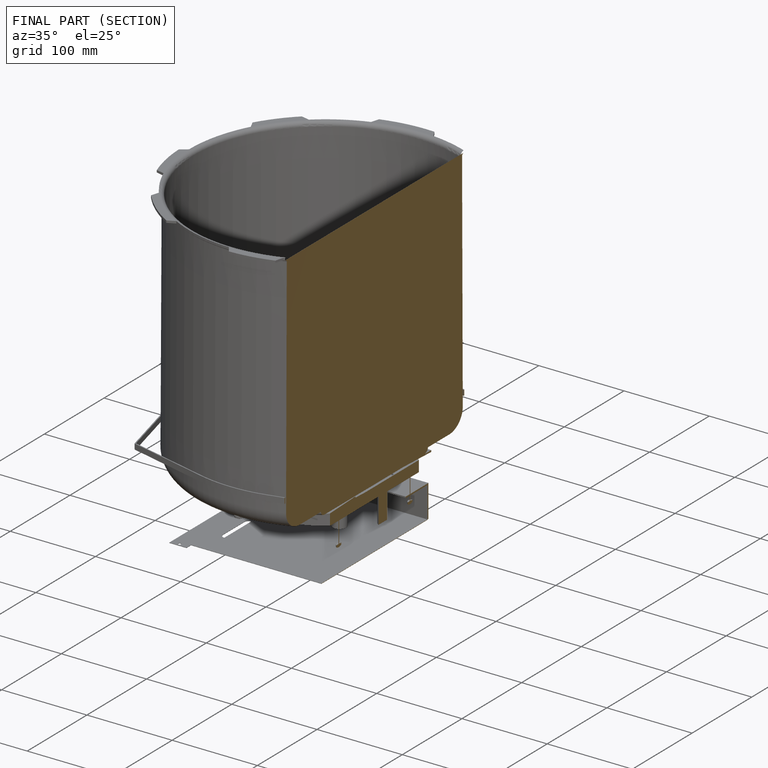
[diagram: finished part — half-section view (interior)]
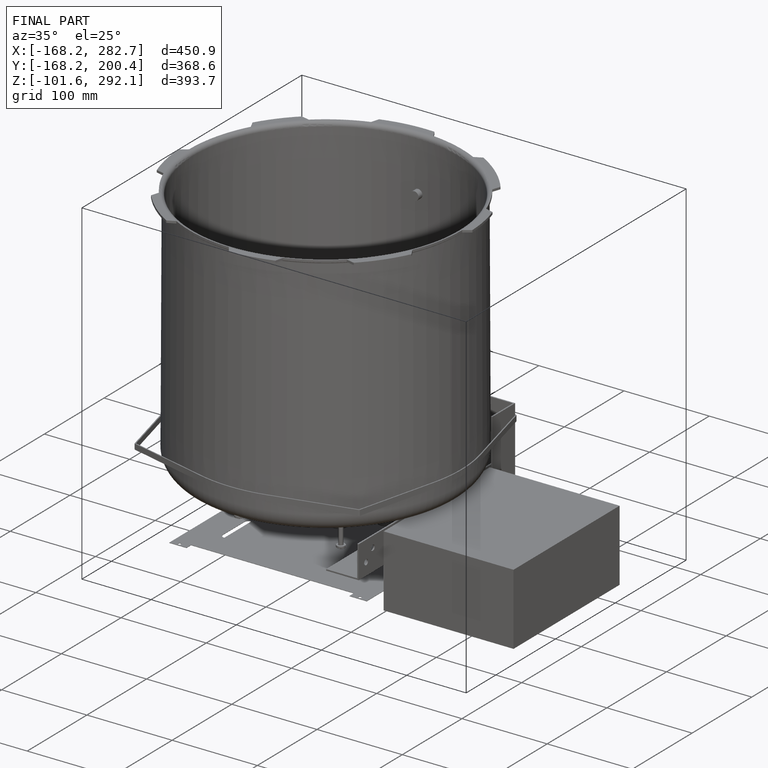
[diagram: finished part — iso view with bounding-box wireframe]
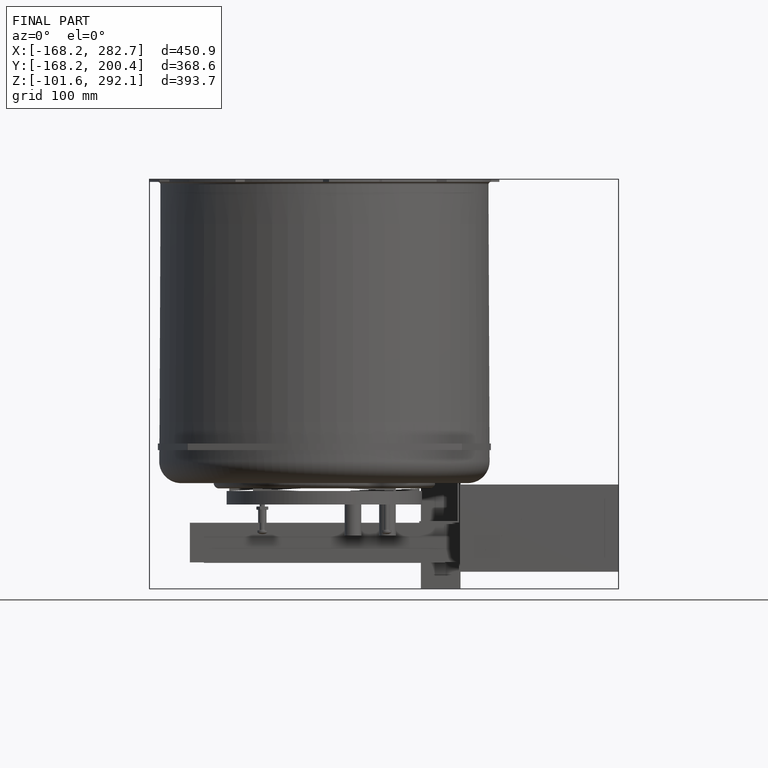
[diagram: finished part — front view with bounding-box wireframe]
